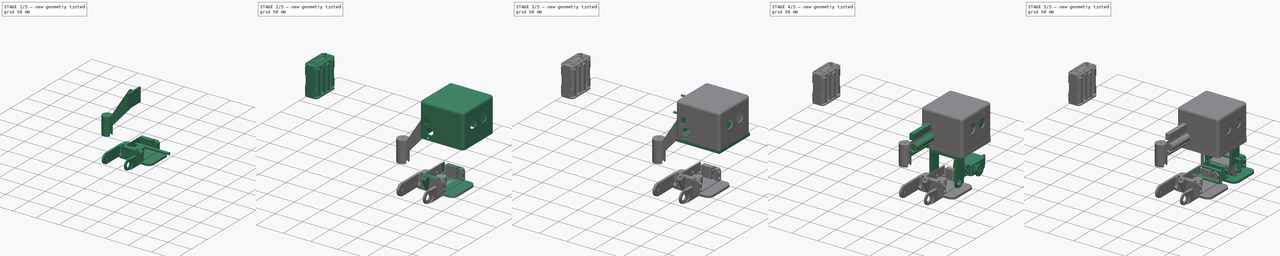
[diagram: build sequence overview — one tinted view per stage of 5, left to right]
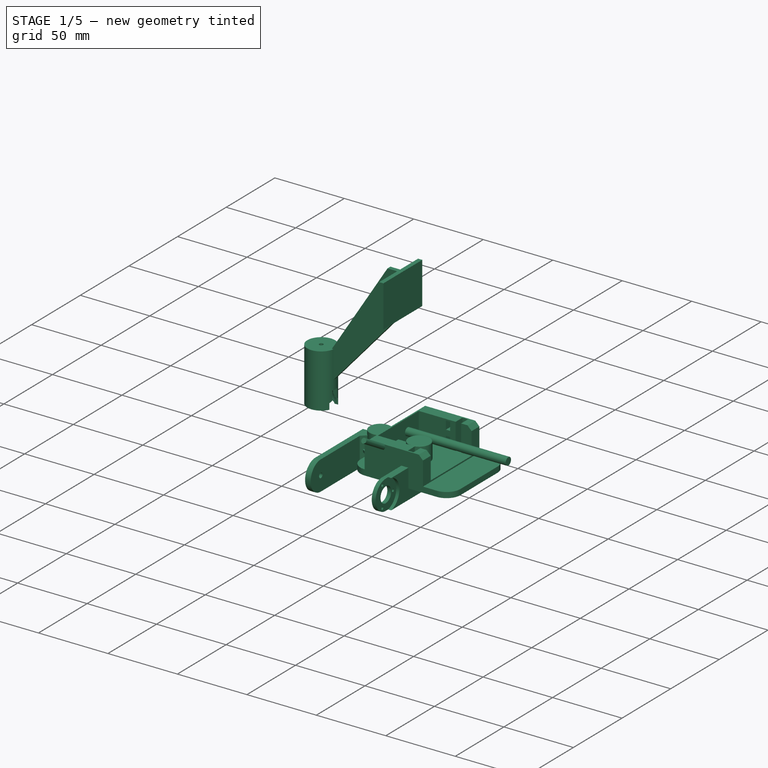
[diagram: stage 1 of 5 — iso view after this stage's code; geometry added in this stage tinted green]
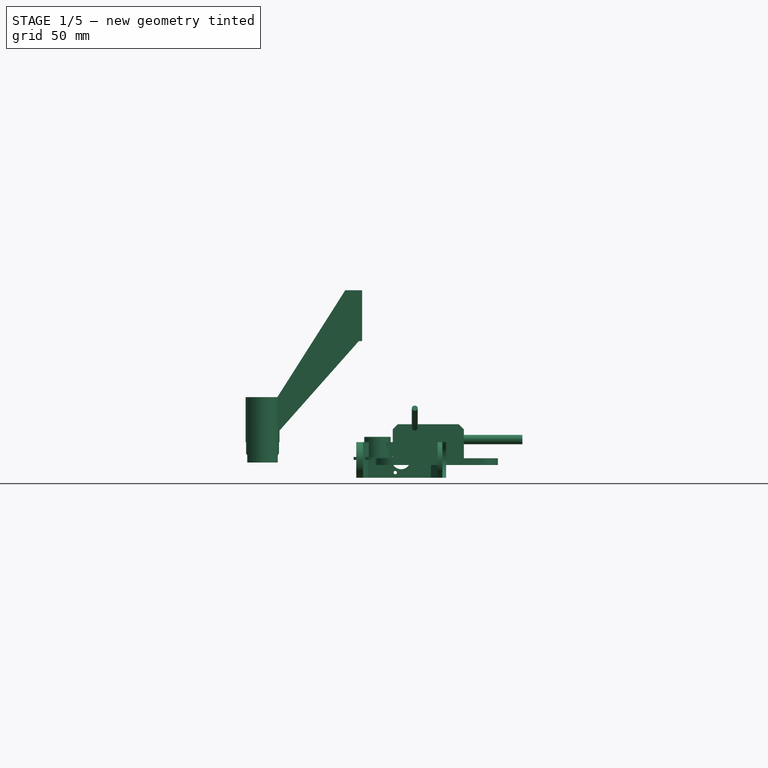
[diagram: stage 1 of 5 — front view after this stage's code; geometry added in this stage tinted green]
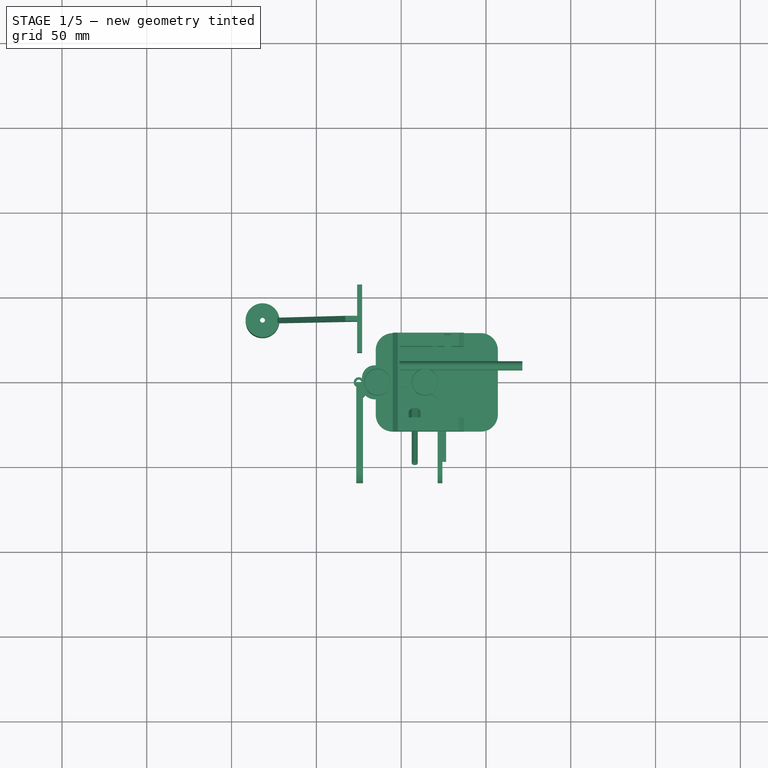
[diagram: stage 1 of 5 — top view after this stage's code; geometry added in this stage tinted green]
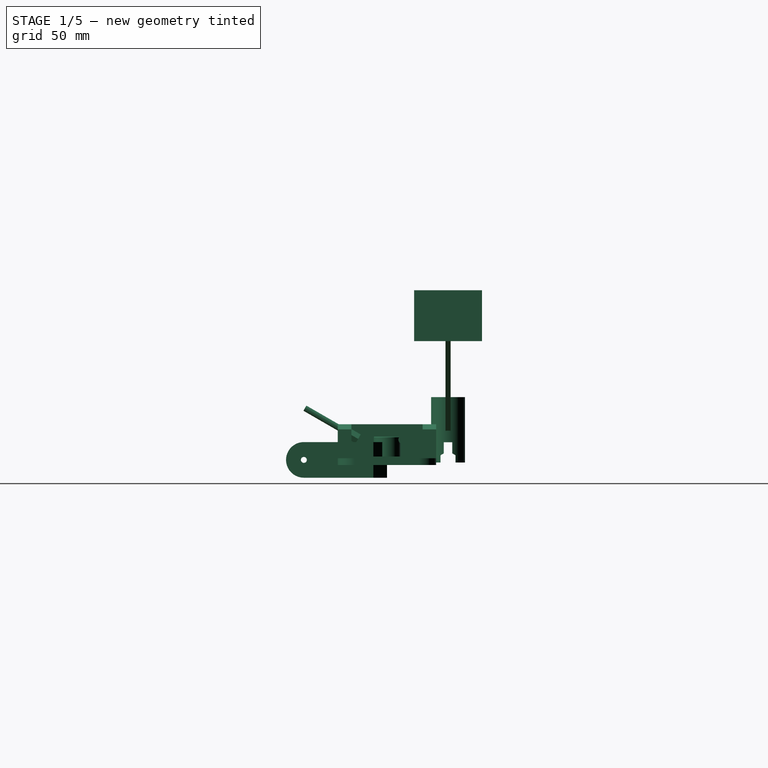
[diagram: stage 1 of 5 — right view after this stage's code; geometry added in this stage tinted green]
FCSTD DOCUMENT  (FreeCAD 0.15R4671 (Git))
Label: zowi
License: CC-BY 3.0
LicenseURL: http://creativecommons.org/licenses/by/3.0/
objects: Part::Feature×181, Part::Cut×47, Part::Cylinder×42, Part::Box×33, Part::MultiFuse×31, App::DocumentObjectGroup×25, App::Annotation×20, Part::Fillet×11, Part::Part2DObjectPython×11, Part::Mirroring×9, Sketcher::SketchObject×9, Part::Sphere×6, Part::Chamfer×5, PartDesign::Pocket×5, PartDesign::Pad×4, Part::FeaturePython×4, PartDesign::Fillet×2, Part::Compound×2, Part::Prism×1, PartDesign::Chamfer×1
note: 413 computed .brp shape members not serialized (recipe doc carries the construction recipe); baked Part::Feature solids carry a one-line shape summary decoded from their .brp

FEATURE [Part::Feature] Part__Feature013  label="Servo-D1"
  Placement = pos=(26.5,9.5,100.6) rot=(0,1,0;3.14159rad)
  shape: bbox 55.5 x 20 x 41.74 mm, 365 faces (baked)
FEATURE [Part::Feature] Part__Feature014  label="Servo-D2"
  Placement = pos=(0,0,13) rot=(0.57735,0.57735,0.57735;2.0944rad)
  shape: bbox 41.74 x 55.5 x 20 mm, 365 faces (baked)
FEATURE [Part::Feature] Part__Feature008  label="J1"
  Placement = pos=(-10.8,44.37,77.54) rot=(0.707107,0.707107,0;3.14159rad)
  shape: bbox 11.7 x 15.49 x 2.5 mm, 224 faces (baked)
FEATURE [Part::Feature] Part__Feature009  label="J2"
  Placement = pos=(-10.8,62.15,77.54) rot=(0.707107,0.707107,0;3.14159rad)
  shape: bbox 11.7 x 15.49 x 2.5 mm, 224 faces (baked)
FEATURE [Part::Feature] Part__Feature007  label="J4"
  Placement = pos=(-10.8,59.6199,125.78) rot=(0,0,-1;1.5708rad)
  shape: bbox 11.65 x 20.57 x 2.5 mm, 290 faces (baked)
FEATURE [Part::Feature] Part__Feature010  label="J16"
  Placement = pos=(-9.55,7.19908,100.417) rot=(0.57735,0.57735,-0.57735;2.0944rad)
  shape: bbox 2.94 x 5.43 x 7.98 mm, 414 faces, 0 solids (baked)
FEATURE [Part::Feature] Part__Feature005  label="PCB"
  Placement = pos=(-12.3914,5,75) rot=(0.57735,0.57735,0.57735;2.0944rad)
  shape: bbox 1.591 x 68.6 x 53.36 mm, 426 faces (baked)
FEATURE [Part::Feature] Part__Feature004  label="J010"
  Placement = pos=(-10.8,14.8841,83.3059) rot=(0.707107,0.707107,0;3.14159rad)
  shape: bbox 10.92 x 14.61 x 8.89 mm, 41 faces (baked)
FEATURE [Part::Feature] Part__Feature011  label="U1"
  Placement = pos=(-9.2,12.159,115.511) rot=(0.57735,-0.57735,-0.57735;2.0944rad)
  shape: bbox 2.435 x 26.9 x 13 mm, 503 faces (baked)
FEATURE [Part::Feature] Part__Feature006  label="J8"
  Placement = pos=(-10.8,37.7759,125.78) rot=(0,0,-1;1.5708rad)
  shape: bbox 11.65 x 20.57 x 2.5 mm, 290 faces (baked)
FEATURE [App::DocumentObjectGroup] Group001  label="placa"
  Group = -> [Part__Feature008,Part__Feature009,Part__Feature007,Part__Feature010,Part__Feature005,Part__Feature004,Part__Feature011,Part__Feature006]
FEATURE [Part::Box] Box  label="Cube"
  Height = 24
  Length = 72
  Placement = pos=(-15,-29,-3) rot=(0,0,1;0rad)
  Width = 58
FEATURE [Part::Box] Box001  label="Cube001"
  Height = 25
  Length = 47
  Placement = pos=(-1,-21,2) rot=(0,0,1;0rad)
  Width = 42
FEATURE [Part::Box] Box002  label="Cube002"
  Height = 38
  Length = 28
  Placement = pos=(37,-45,1) rot=(0,0,1;0rad)
  Width = 88
FEATURE [Part::Box] Box003  label="Cube003"
  Height = 38
  Length = 28
  Placement = pos=(-33,-45,1) rot=(0,0,1;0rad)
  Width = 88
FEATURE [Part::Cut] Cut
  Base = -> Box
  Tool = -> Box001
FEATURE [Part::Cut] Cut001
  Base = -> Cut
  Tool = -> Box002
FEATURE [Part::Cut] Cut002
  Base = -> Cut001
  Tool = -> Box003
FEATURE [Part::Cylinder] Cylinder003  label="Joint-D005"
  Angle = 360
  Height = 74.5
  Placement = pos=(-22,9.5,12) rot=(0,1,0;1.5708rad)
  Radius = 1.75
FEATURE [Part::Fillet] Fillet
  Base = -> Cut002
  Edges = 4 edges r=10: [Edge1,Edge3,Edge5,Edge14]
FEATURE [Part::Box] Box006  label="Cube006"
  Height = 21
  Length = 4
  Placement = pos=(25.5,-28,2) rot=(0,0,1;0rad)
  Width = 56
FEATURE [Part::Box] Box007  label="Cube007"
  Height = 6
  Length = 3
  Placement = pos=(18.5,-28,4) rot=(0,0,1;0rad)
  Width = 56
FEATURE [Part::Box] Box008  label="Cube008"
  Height = 6
  Length = 3
  Placement = pos=(18.5,-28,14) rot=(0,0,1;0rad)
  Width = 56
FEATURE [Part::Cylinder] Cylinder011  label="Joint-D013"
  Angle = 360
  Height = 74.5
  Placement = pos=(-3,9.5,12) rot=(0,1,0;1.5708rad)
  Radius = 2.75
FEATURE [Part::Chamfer] Chamfer
  Base = -> Fillet
  Edges = 3 edges r=3: [Edge18,Edge33,Edge37]
FEATURE [Part::Cut] Cut008
  Base = -> Chamfer
  Tool = -> Cylinder003
FEATURE [Part::Cut] Cut010
  Base = -> Cut008
  Tool = -> Box006
FEATURE [Part::Cut] Cut011
  Base = -> Cut010
  Tool = -> Box008
FEATURE [Part::Cut] Cut012
  Base = -> Cut011
  Tool = -> Box007
FEATURE [Part::Cylinder] Cylinder052  label="Cylinder071"
  Angle = 360
  Height = 27
  Placement = pos=(8,-25,17) rot=(1,0,0;1.0472rad)
  Radius = 1.75
FEATURE [Part::Prism] prism
  Circumradius = 3.5
  Height = 10
  Placement = pos=(8,-17,12.375) rot=(1,0,0;1.0472rad)
  Polygon = 6
FEATURE [Part::MultiFuse] Fusion036
  Shapes = -> [Cylinder052,prism]
FEATURE [Part::Box] Box044  label="Cube043"
  Height = 30
  Length = 3
  Placement = pos=(-26,16,70) rot=(0,0,1;0rad)
  Width = 40
FEATURE [Part::Feature] Cut062
  Placement = pos=(-82.5,-7.75,37) rot=(0,1,0;3.14159rad)
  shape: bbox 20 x 20 x 38.5 mm, 2097 faces (baked)
FEATURE [Part::Feature] hull003
  shape: bbox 48 x 3 x 83 mm, 8 faces (baked)
FEATURE [Part::MultiFuse] Fusion037  label="cola"
  Shapes = -> [Box044,hull003,Cut062]
FEATURE [App::DocumentObjectGroup] Group003  label="original-src"
  Group = -> [Part__Mirroring006,Part__Mirroring007,Group004,Cut069,Chamfer004,Group005]
FEATURE [Part::Feature] Part__Mirroring007001  label="pata-orig"
  Placement = pos=(-17,-62,-9.49999) rot=(-1,0,0;1.5708rad)
  shape: bbox 53 x 59.5 x 21 mm, 32 faces (baked)
FEATURE [Sketcher::SketchObject] Sketch001  label="leg-sketch-1"
  Placement = pos=(0,0,0) rot=(0.57735,0.57735,0.57735;2.0944rad)
  sketch-geometry (5):
    g0: LineSegment StartX=-49 StartY=10.5 StartZ=0 EndX=0 EndY=10.5 EndZ=0
    g1: LineSegment StartX=0 StartY=10.5 StartZ=0 EndX=0 EndY=-10.5 EndZ=0
    g2: LineSegment StartX=0 StartY=-10.5 StartZ=0 EndX=-49 EndY=-10.5 EndZ=0
    g3: LineSegment [constr] StartX=-49 StartY=-10.5 StartZ=0 EndX=-49 EndY=10.5 EndZ=0
    g4: ArcOfCircle CenterX=-49 CenterY=0 CenterZ=0 NormalX=0 NormalY=0 NormalZ=1 Radius=10.5 StartAngle=1.5708 EndAngle=4.71239
  constraints (15):
    c: Coincident(g0,g1)
    c: Coincident(g1,g2)
    c: Coincident(g2,g3)
    c: Coincident(g3,g0)
    c: Horizontal(g0)
    c: Horizontal(g2)
    c: Vertical(g1)
    c: Vertical(g3)
    c: PointOnObject(g4,g3)
    c: Coincident(g4,g0)
    c: Coincident(g4,g2)
    c: PointOnObject(g4,g-1)
    c: PointOnObject(g0,g-2)
    c: DistanceX(g0) = 49
    c: DistanceY(g1) = -21
FEATURE [PartDesign::Pad] Pad001  label="leg-block-1"
  Length = 53
  Length2 = 100
  Midplane = true
  Placement = pos=(0,0,0) rot=(0.57735,0.57735,0.57735;2.0944rad)
  Sketch = -> Sketch001
  Type = 0
FEATURE [Sketcher::SketchObject] Sketch002  label="leg-top-sketch"
  ExternalGeometry = -> [Pad001]
  Placement = pos=(0,0,10.5) rot=(0,0,-1;1.5708rad)
  Support = -> Pad001 [Face1]
  sketch-geometry (9):
    g0: LineSegment StartX=64 StartY=21.5 StartZ=0 EndX=10 EndY=21.5 EndZ=0
    g1: LineSegment StartX=6 StartY=17.5 StartZ=0 EndX=6 EndY=-19.5 EndZ=0
    g2: LineSegment StartX=9 StartY=-22.5 StartZ=0 EndX=64 EndY=-22.5 EndZ=0
    g3: LineSegment StartX=64 StartY=-22.5 StartZ=0 EndX=64 EndY=21.5 EndZ=0
    g4: LineSegment StartX=6 StartY=17.5 StartZ=0 EndX=10 EndY=21.5 EndZ=0
    g5: LineSegment [constr] StartX=6 StartY=17.5 StartZ=0 EndX=6 EndY=21.5 EndZ=0
    g6: LineSegment StartX=6 StartY=-19.5 StartZ=0 EndX=9 EndY=-22.5 EndZ=0
    g7: LineSegment [constr] StartX=9 StartY=-22.5 StartZ=0 EndX=6 EndY=-22.5 EndZ=0
    g8: LineSegment [constr] StartX=6 StartY=-22.5 StartZ=0 EndX=6 EndY=-19.5 EndZ=0
  constraints (26):
    c: Coincident(g2,g3)
    c: Coincident(g3,g0)
    c: Horizontal(g0)
    c: Horizontal(g2)
    c: Vertical(g1)
    c: Vertical(g3)
    c: DistanceY(g-3,g5) = -5
    c: DistanceY(g7,g-4) = -4
    c: Angle(g-2,g4) = 2.35619
    c: Coincident(g1,g4)
    c: Coincident(g5,g1)
    c: Vertical(g5)
    c: DistanceY(g1,g7) = -40
    c: DistanceX(g5,g-3) = -6
    c: Coincident(g0,g4)
    c: PointOnObject(g5,g0)
    c: DistanceX(g-3,g0) = 15
    c: Coincident(g2,g6)
    c: Coincident(g7,g2)
    c: Horizontal(g7)
    c: DistanceX(g7) = -3
    c: Coincident(g1,g6)
    c: Coincident(g8,g7)
    c: Coincident(g8,g1)
    c: Equal(g8,g7)
    c: Vertical(g8)
FEATURE [PartDesign::Pocket] Pocket  label="leg-block-2"
  Length = 5
  Placement = pos=(0,0,0) rot=(0.57735,0.57735,0.57735;2.0944rad)
  Sketch = -> Sketch002
  Type = 1
FEATURE [Sketcher::SketchObject] Sketch003  label="ankle-rounded-horn-sketch"
  ExternalGeometry = -> [Pocket]
  Placement = pos=(26.5,0,0) rot=(0.57735,0.57735,0.57735;2.0944rad)
  Support = -> Pocket [Face4]
  sketch-geometry (1):
    g0: Circle CenterX=-49 CenterY=0 CenterZ=0 NormalX=0 NormalY=0 NormalZ=1 Radius=10.75
  constraints (2):
    c: Coincident(g0,g-3)
    c: Radius(g0) = 10.75
FEATURE [PartDesign::Pocket] Pocket001  label="ankle-rounded-horn-cutout"
  Length = 2.2
  Placement = pos=(0,0,0) rot=(0.57735,0.57735,0.57735;2.0944rad)
  Sketch = -> Sketch003
  Type = 0
FEATURE [Sketcher::SketchObject] Sketch004  label="ankle-rear-shaft-drill-sketch"
  ExternalGeometry = -> [Pocket001]
  Placement = pos=(-26.5,0,0) rot=(0.57735,0.57735,-0.57735;4.18879rad)
  Support = -> Pocket001 [Face2]
  sketch-geometry (1):
    g0: Circle CenterX=-49 CenterY=0 CenterZ=0 NormalX=0 NormalY=0 NormalZ=1 Radius=1.75
  constraints (2):
    c: Coincident(g0,g-3)
    c: Radius(g0) = 1.75
FEATURE [PartDesign::Pocket] Pocket002  label="ankle-rear-shaft-drill"
  Length = 0
  Placement = pos=(0,0,0) rot=(0.57735,0.57735,0.57735;2.0944rad)
  Sketch = -> Sketch004
  Type = 2
FEATURE [Sketcher::SketchObject] Sketch005  label="hip-rounded-horn-cutout-sketch"
  Placement = pos=(0,-6,0) rot=(-0.57735,-0.57735,0.57735;4.18879rad)
  Support = -> Pocket002 [Face10]
  sketch-geometry (1):
    g0: Circle CenterX=0 CenterY=0 CenterZ=0 NormalX=0 NormalY=0 NormalZ=1 Radius=11
  constraints (2):
    c: Coincident(g0,g-1)
    c: Radius(g0) = 11
FEATURE [PartDesign::Pocket] Pocket003  label="hip-rounded-horn-cutout"
  Length = 3.3
  Placement = pos=(0,0,0) rot=(0.57735,0.57735,0.57735;2.0944rad)
  Sketch = -> Sketch005
  Type = 0
FEATURE [Sketcher::SketchObject] Sketch006  label="horn-side-chamfer-sketch"
  ExternalGeometry = -> [Pocket003]
  Placement = pos=(0,0,10.5) rot=(0,0,-1;1.5708rad)
  Support = -> Pocket003 [Face1]
  sketch-geometry (3):
    g0: LineSegment StartX=0 StartY=18.5 StartZ=0 EndX=8 EndY=26.5 EndZ=0
    g1: LineSegment StartX=0 StartY=18.5 StartZ=0 EndX=0 EndY=26.5 EndZ=0
    g2: LineSegment StartX=0 StartY=26.5 StartZ=0 EndX=8 EndY=26.5 EndZ=0
  constraints (8):
    c: PointOnObject(g0,g-2)
    c: PointOnObject(g0,g-3)
    c: Angle(g-2,g0) = 2.35619
    c: DistanceY(g-3,g0) = -8
    c: Coincident(g0,g1)
    c: Coincident(g1,g-3)
    c: Coincident(g1,g2)
    c: Coincident(g2,g0)
FEATURE [PartDesign::Pocket] Pocket004  label="horn-side-chamfer"
  Length = 5
  Placement = pos=(0,0,0) rot=(0.57735,0.57735,0.57735;2.0944rad)
  Sketch = -> Sketch006
  Type = 1
FEATURE [Part::Cylinder] Cylinder054  label="servo-shaft-drill"
  Angle = 360
  Height = 20
  Placement = pos=(0,10,0) rot=(1,0,0;1.5708rad)
  Radius = 5.5
FEATURE [Part::Cylinder] Cylinder055  label="servo-horn-small-drill-master"
  Angle = 360
  Height = 20
  Placement = pos=(-3.5,10,7.5) rot=(1,0,0;1.5708rad)
  Radius = 1
FEATURE [Part::FeaturePython] Clone001  label="Clone of servo-horn-small-drill-master"  # Draft clone (typed FeaturePython)
  Objects = -> [Cylinder055]
  Placement = pos=(7.35,10,-2.33815e-06) rot=(1,0,0;1.5708rad)
  Scale = (1,1,1)
FEATURE [Part::FeaturePython] Clone002  label="Clone of servo-horn-small-drill-master001"  # Draft clone (typed FeaturePython)
  Objects = -> [Cylinder055]
  Placement = pos=(-3.5,10,-7.5) rot=(1,0,0;1.5708rad)
  Scale = (1,1,1)
FEATURE [Part::MultiFuse] Fusion041  label="servo-Drills-block1-master"
  Shapes = -> [Clone001,Clone002,Cylinder055,Cylinder054]
FEATURE [Part::FeaturePython] Clone003  label="Clone of servo-Drills-block1-master"  # Draft clone (typed FeaturePython)
  Objects = -> [Fusion041]
  Placement = pos=(22,-49,6.96015e-06) rot=(0,0,1;1.5708rad)
  Scale = (1,1,1)
FEATURE [Part::MultiFuse] Fusion042  label="Servo-horn-drills"
  Shapes = -> [Fusion041,Clone003]
FEATURE [Part::Cut] Cut070  label="Leg"
  Base = -> Pocket004
  Tool = -> Fusion042
FEATURE [App::DocumentObjectGroup] Group007  label="Leg-src"
  Group = -> [Pad001,Pocket,Pocket001,Pocket002,Pocket003,Cut070]
FEATURE [Sketcher::SketchObject] Sketch007
  sketch-geometry (15):
    g0: LineSegment StartX=-15.86 StartY=-10 StartZ=0 EndX=15.86 EndY=-10 EndZ=0
    g1: ArcOfCircle CenterX=-25 CenterY=0 CenterZ=0 NormalX=0 NormalY=0 NormalZ=1 Radius=3.00012 StartAngle=0.897592 EndAngle=5.38559
    g2: ArcOfCircle CenterX=25 CenterY=0 CenterZ=0 NormalX=0 NormalY=0 NormalZ=1 Radius=3.00012 StartAngle=4.03918 EndAngle=8.52719
    g3: Circle CenterX=-25 CenterY=0 CenterZ=0 NormalX=0 NormalY=0 NormalZ=1 Radius=1.6
    g4: Circle CenterX=25 CenterY=0 CenterZ=0 NormalX=0 NormalY=0 NormalZ=1 Radius=1.6
    g5: LineSegment [constr] StartX=-25 StartY=31.675 StartZ=0 EndX=25 EndY=31.675 EndZ=0
    g6: LineSegment [constr] StartX=-25 StartY=31.675 StartZ=0 EndX=-25 EndY=0 EndZ=0
    g7: LineSegment [constr] StartX=3.61551 StartY=10 StartZ=0 EndX=3.61551 EndY=-10 EndZ=0
    g8: LineSegment StartX=-15.86 StartY=10 StartZ=0 EndX=15.86 EndY=10 EndZ=0
    g9: ArcOfCircle CenterX=-15.6958 CenterY=2.56491 CenterZ=0 NormalX=0 NormalY=0 NormalZ=1 Radius=7.4369 StartAngle=1.59288 EndAngle=3.17109
    g10: ArcOfCircle CenterX=-15.6958 CenterY=-2.56491 CenterZ=0 NormalX=0 NormalY=0 NormalZ=1 Radius=7.4369 StartAngle=3.11209 EndAngle=4.69031
    g11: ArcOfCircle CenterX=15.6958 CenterY=2.56491 CenterZ=0 NormalX=0 NormalY=0 NormalZ=1 Radius=7.4369 StartAngle=6.25369 EndAngle=7.8319
    g12: ArcOfCircle CenterX=15.6958 CenterY=-2.56491 CenterZ=0 NormalX=0 NormalY=0 NormalZ=1 Radius=7.4369 StartAngle=4.73447 EndAngle=6.31268
    g13: LineSegment [constr] StartX=-28.0001 StartY=-22.7357 StartZ=0 EndX=27.9999 EndY=-22.7357 EndZ=0
    g14: LineSegment [constr] StartX=-28.0001 StartY=1.36738e-07 StartZ=0 EndX=-28.0001 EndY=-22.7357 EndZ=0
  constraints (43):
    c: Coincident(g3,g1)
    c: Coincident(g4,g2)
    c: Horizontal(g5)
    c: DistanceX(g5) = 50
    c: Coincident(g6,g5)
    c: Vertical(g6)
    c: Coincident(g1,g6)
    c: DistanceY(g7) = -20
    c: Symmetric(g7,g7,g-1)
    c: Symmetric(g8,g0,g-1)
    c: Equal(g8,g0)
    c: Equal(g2,g1)
    c: Radius(g3) = 1.6
    c: Coincident(g9,g1)
    c: Coincident(g8,g9)
    c: Equal(g4,g3)
    c: Symmetric(g2,g1,g-2)
    c: Symmetric(g2,g1,g-2)
    c: Coincident(g11,g8)
    c: Coincident(g0,g12)
    c: Coincident(g10,g0)
    c: Coincident(g10,g1)
    c: Coincident(g12,g2)
    c: Horizontal(g8)
    c: Horizontal(g0)
    c: PointOnObject(g7,g8)
    c: DistanceX(g8) = 31.72
    c: PointOnObject(g1,g-1)
    c: Symmetric(g8,g8,g-2)
    c: Horizontal(g13)
    c: DistanceX(g13) = 56
    c: PointOnObject(g14,g1)
    c: Coincident(g14,g13)
    c: Vertical(g14)
    c: Tangent(g14,g1)
    c: Equal(g9,g11)
    c: Equal(g12,g11)
    c: Equal(g10,g9)
    c: Coincident(g11,g2)
    c: Symmetric(g5,g5,g-2)
    c: Symmetric(g2,g2,g-1)
    c: Symmetric(g1,g1,g-1)
    c: Symmetric(g2,g1,g-2)
FEATURE [PartDesign::Pad] Pad002
  Length = 1.68
  Length2 = 100
  Sketch = -> Sketch007
  Type = 0
FEATURE [Sketcher::SketchObject] Sketch008
  ExternalGeometry = -> [Pad002]
  Placement = pos=(0,0,1.68) rot=(0,0,1;0rad)
  Support = -> Pad002 [Face12]
  sketch-geometry (3):
    g0: Circle CenterX=-14 CenterY=0 CenterZ=0 NormalX=0 NormalY=0 NormalZ=1 Radius=7.8
    g1: Circle CenterX=14 CenterY=0 CenterZ=0 NormalX=0 NormalY=0 NormalZ=1 Radius=7.8
    g2: LineSegment [constr] StartX=-25 StartY=0 StartZ=0 EndX=-14 EndY=0 EndZ=0
  constraints (10):
    c: PointOnObject(g0,g-1)
    c: PointOnObject(g1,g-1)
    c: Symmetric(g0,g1,g-2)
    c: Equal(g0,g1)
    c: Radius(g1) = 7.8
    c: Coincident(g2,g-3)
    c: Coincident(g2,g0)
    c: Horizontal(g2)
    c: Tangent(g2,g-1)
    c: DistanceX(g2) = 11
FEATURE [PartDesign::Pad] Pad003
  Length = 12
  Length2 = 100
  Sketch = -> Sketch008
  Type = 0
FEATURE [PartDesign::Chamfer] Chamfer005
  Base = -> Pad003 [Edge34,Edge36]
  Size = 0.3
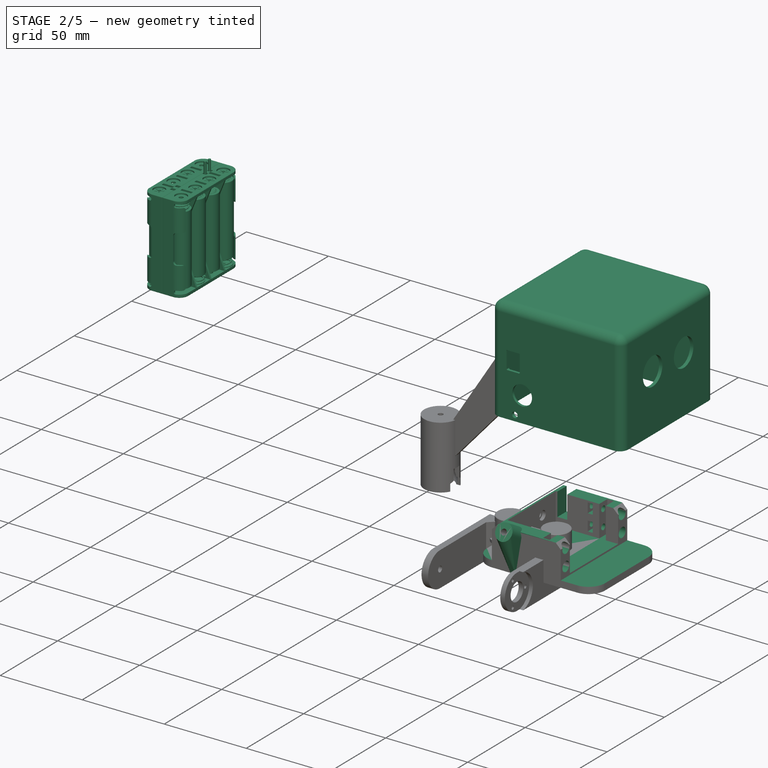
[diagram: stage 2 of 5 — iso view after this stage's code; geometry added in this stage tinted green]
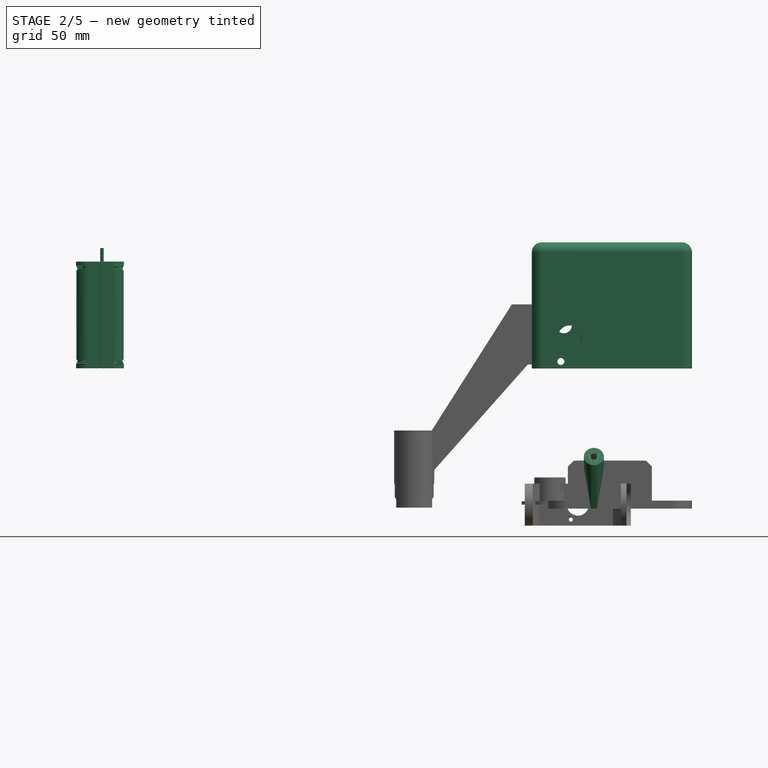
[diagram: stage 2 of 5 — front view after this stage's code; geometry added in this stage tinted green]
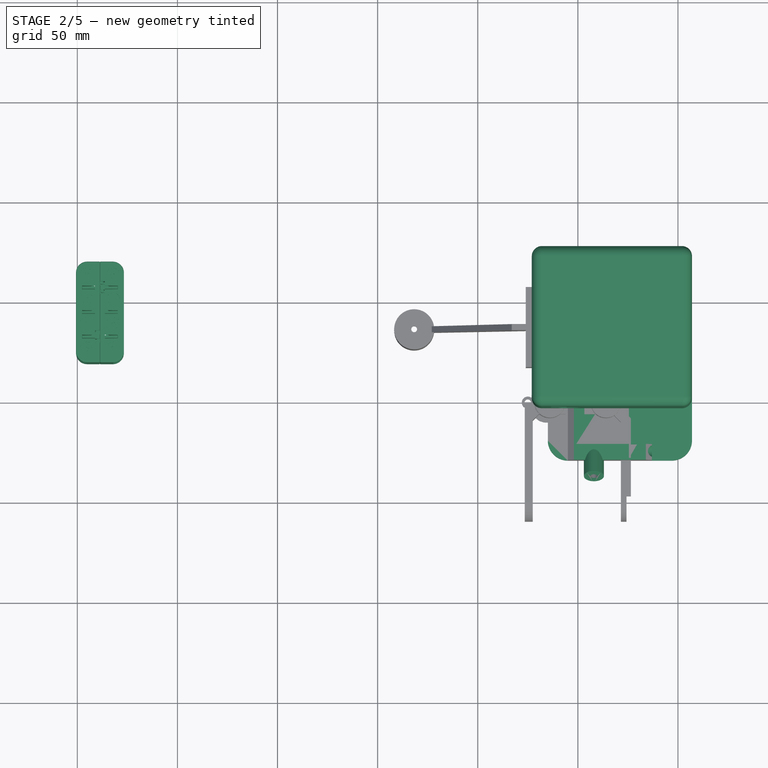
[diagram: stage 2 of 5 — top view after this stage's code; geometry added in this stage tinted green]
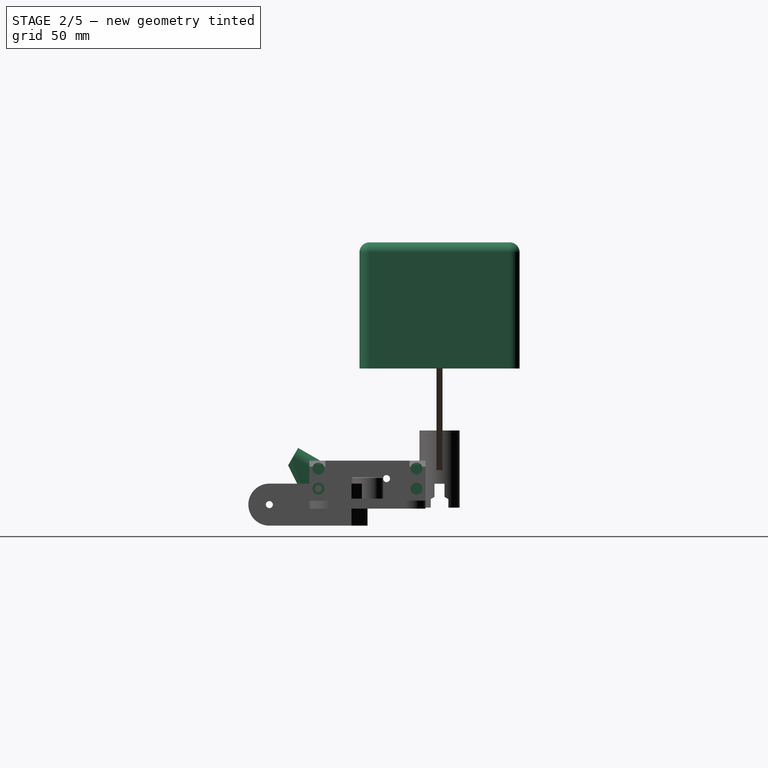
[diagram: stage 2 of 5 — right view after this stage's code; geometry added in this stage tinted green]
FEATURE [Part::Cylinder] Cylinder008  label="Joint-D010"
  Angle = 360
  Height = 21.5
  Placement = pos=(16,-24.5,7) rot=(0,1,0;1.5708rad)
  Radius = 1.75
FEATURE [Part::Cylinder] Cylinder009  label="Joint-D011"
  Angle = 360
  Height = 21.5
  Placement = pos=(32,-24.5,7) rot=(0,1,0;1.5708rad)
  Radius = 3
FEATURE [Part::MultiFuse] Fusion001
  Shapes = -> [Cylinder009,Cylinder008]
FEATURE [Part::MultiFuse] Fusion002
  Placement = pos=(0,0,10) rot=(0,0,1;0rad)
  Shapes = -> [Cylinder009,Cylinder008]
FEATURE [Part::MultiFuse] Fusion003
  Placement = pos=(0,49,0) rot=(0,0,1;0rad)
  Shapes = -> [Cylinder009,Cylinder008]
FEATURE [Part::MultiFuse] Fusion004
  Placement = pos=(0,49,10) rot=(0,0,1;0rad)
  Shapes = -> [Cylinder009,Cylinder008]
FEATURE [Part::Box] Box019  label="Cube019"
  Height = 66
  Length = 76
  Placement = pos=(-21,-2,87) rot=(0,0,1;0rad)
  Width = 76
FEATURE [Part::Fillet] Fillet006
  Base = -> Box019
  Edges = 8 edges r=3.5: [Edge1,Edge2,Edge3,Edge5,Edge6,Edge7,Edge10,Edge12]
  Placement = pos=(0,0,-24) rot=(0,0,1;0rad)
FEATURE [Part::Cut] Cut026
  Tool = -> Fillet006
FEATURE [Part::Cylinder] Cylinder014  label="Cylinder002"
  Angle = 360
  Height = 31
  Placement = pos=(-8.5,11,71.5) rot=(1,0,0;1.5708rad)
  Radius = 1.75
FEATURE [Part::Cut] Cut027
  Base = -> Cut026
  Tool = -> Cylinder014
FEATURE [Part::Cylinder] Cylinder015  label="Cylinder003"
  Angle = 360
  Height = 31
  Placement = pos=(-8.5,80,71.5) rot=(1,0,0;1.5708rad)
  Radius = 1.75
FEATURE [Part::Cut] Cut028
  Base = -> Cut027
  Tool = -> Cylinder015
FEATURE [Part::Cylinder] Cylinder016  label="Cylinder004"
  Angle = 360
  Height = 31
  Placement = pos=(-4,11,83.5) rot=(1,0,0;1.5708rad)
  Radius = 6
FEATURE [Part::Cut] Cut029
  Base = -> Cut028
  Tool = -> Cylinder016
FEATURE [Part::Box] Box020  label="Cube020"
  Height = 11
  Length = 8
  Placement = pos=(-13.5,-13,95) rot=(0,0,1;0rad)
  Width = 24
FEATURE [Part::Cut] Cut013
  Base = -> Cut012
  Tool = -> Fusion004
FEATURE [Part::Cut] Cut014
  Base = -> Cut013
  Tool = -> Fusion003
FEATURE [Part::Cut] Cut015
  Base = -> Cut014
  Tool = -> Fusion002
FEATURE [Part::Cut] Cut016
  Base = -> Cut015
  Tool = -> Fusion001
FEATURE [Part::Cylinder] Cylinder024  label="Joint-D017"
  Angle = 360
  Height = 52.5
  Placement = pos=(8,49.5,103) rot=(0,1,0;1.5708rad)
  Radius = 8.5
FEATURE [Part::Cylinder] Cylinder025  label="Joint-D018"
  Angle = 360
  Height = 52.5
  Placement = pos=(8,22.5,103) rot=(0,1,0;1.5708rad)
  Radius = 8.5
FEATURE [Part::Cylinder] Cylinder026  label="Cylinder029"
  Angle = 360
  Height = 31
  Placement = pos=(-7,80,89.6) rot=(1,0,0;1.5708rad)
  Radius = 4
FEATURE [Part::MultiFuse] Fusion030
  Shapes = -> [Cylinder025,Cylinder024]
FEATURE [Part::Cut] Cut055
  Base = -> Cut029
  Tool = -> Fusion030
FEATURE [Part::Cut] Cut056
  Base = -> Cut055
  Tool = -> Cylinder026
FEATURE [Part::Cut] Cut057
  Base = -> Cut056
  Tool = -> Box020
FEATURE [Part::Fillet] Fillet018006  label="head"
  Base = -> Cut057
  Edges = 4 edges r=0.5: [Edge82,Edge83,Edge84,Edge85]
FEATURE [Part::Feature] hull002
  shape: bbox 10 x 17.12 x 30.33 mm, 240 faces (baked)
FEATURE [Part::Box] Box042  label="Cube041"
  Height = 23
  Length = 6
  Placement = pos=(0,19,7) rot=(0,0,1;0rad)
  Width = 36
FEATURE [Part::Cut] Cut060  label="pie001"
  Base = -> Cut016
  Tool = -> Cylinder011
FEATURE [Part::Cut] Cut059  label="piepatin"
  Base = -> Cut060
  Placement = pos=(0,0,1) rot=(0,0,1;0rad)
  Tool = -> Box042
FEATURE [Part::MultiFuse] Fusion035
  Shapes = -> [hull002,Cut059]
FEATURE [Part::Cut] Cut061  label="patin"
  Base = -> Fusion035
  Tool = -> Fusion036
FEATURE [Sketcher::SketchObject] Sketch
  Placement = pos=(-22,0,0) rot=(0.57735,-0.57735,-0.57735;2.0944rad)
  sketch-geometry (4):
    g0: ArcOfCircle CenterX=-49 CenterY=111.5 CenterZ=0 NormalX=0 NormalY=0 NormalZ=1 Radius=3.5 StartAngle=9.1497e-08 EndAngle=3.14159
    g1: LineSegment StartX=-52.5 StartY=111.5 StartZ=0 EndX=-52.5 EndY=91.5 EndZ=0
    g2: LineSegment StartX=-45.5 StartY=111.5 StartZ=0 EndX=-45.5 EndY=91.5 EndZ=0
    g3: ArcOfCircle CenterX=-49 CenterY=91.5 CenterZ=0 NormalX=0 NormalY=0 NormalZ=1 Radius=3.5 StartAngle=3.14159 EndAngle=6.28319
  constraints (13):
    c: DistanceX(g-1,g0) = -49
    c: DistanceY(g-1,g0) = 111.5
    c: Radius(g0) = 3.5
    c: Vertical(g1)
    c: Vertical(g2)
    c: Coincident(g1,g0)
    c: Coincident(g2,g0)
    c: Tangent(g2,g0)
    c: Tangent(g1,g0)
    c: Coincident(g3,g1)
    c: Coincident(g3,g2)
    c: Equal(g3,g0)
    c: Distance(g3,g0) = 20
FEATURE [PartDesign::Pad] Pad
  Length = 5
  Length2 = 100
  Placement = pos=(-22,0,0) rot=(0.57735,-0.57735,-0.57735;2.0944rad)
  Reversed = true
  Sketch = -> Sketch
  Type = 0
FEATURE [Part::FeaturePython] Clone  label="Clone of Pad"  # Draft clone (typed FeaturePython)
  Objects = -> [Pad]
  Placement = pos=(-22,-20,0) rot=(0.57735,-0.57735,-0.57735;2.0944rad)
  Scale = (1,1,1)
FEATURE [Part::MultiFuse] Fusion039
  Placement = pos=(4.5,0,0) rot=(0,0,1;0rad)
  Shapes = -> [Pad,Clone]
FEATURE [Part::Box] Box047  label="Cube046"
  Height = 49
  Length = 17
  Placement = pos=(-14,-2.5,75) rot=(0,0,1;0rad)
  Width = 77
FEATURE [Part::Fillet] Fillet018014
  Base = -> Box047
  Edges = 12 edges r=2: [Edge1,Edge2,Edge3,Edge4,Edge5,Edge6,Edge7,Edge8,Edge9,Edge10,Edge11,Edge12]
FEATURE [Part::Cut] Cut069  label="cabeza"
  Base = -> Fillet018006
  Tool = -> Fillet018014
FEATURE [App::DocumentObjectGroup] Group008  label="fake-ultrasound"
  Group = -> [Pad002,Pad003,Chamfer005]
FEATURE [App::DocumentObjectGroup] Group006  label="src"
  Group = -> [Group007,Part__Mirroring007001,Group008]
FEATURE [Part::Feature] Part__Mirroring007002  label="pie-I001"
  Placement = pos=(-202.95,69.39,2) rot=(0,0,-1;1.5708rad)
  shape: bbox 58 x 72 x 24 mm, 84 faces (baked)
FEATURE [Part::Feature] Cut071  label="pie-D001"
  Placement = pos=(-274.85,69.19,3) rot=(0,0,-1;1.5708rad)
  shape: bbox 58 x 72 x 24 mm, 84 faces (baked)
FEATURE [Part::Feature] Part__Mirroring007003  label="pata-I001"
  Placement = pos=(-202.95,69.9,1.95) rot=(0,0,-1;1.5708rad)
  shape: bbox 21 x 53 x 59.5 mm, 32 faces (baked)
FEATURE [Part::Feature] Chamfer006  label="chasis001"
  Placement = pos=(-275,70,2.44) rot=(0,0,-1;1.5708rad)
  shape: bbox 80 x 80 x 55 mm, 159 faces (baked)
FEATURE [Part::Feature] Cut072  label="head001"
  Placement = pos=(-275,70,2.44) rot=(0,0,-1;1.5708rad)
  shape: bbox 80 x 80 x 63 mm, 68 faces (baked)
FEATURE [Part::Feature] Part__Mirroring007004  label="leg-body"
  Placement = pos=(-255.95,69.7,1.95) rot=(0,0,-1;1.5708rad)
  shape: bbox 21 x 53 x 59.5 mm, 32 faces (baked)
FEATURE [Part::Feature] Chamfer007  label="ISO-10642-M3x10"
  Placement = pos=(-265.35,70.0132,15) rot=(0.57735,0.57735,-0.57735;2.0944rad)
  shape: bbox 6.046 x 10 x 6.046 mm, 25 faces (baked)
FEATURE [Part::Feature] Chamfer008  label="ISO-10642-M3x011"
  Placement = pos=(-212.45,70.2132,15) rot=(0.57735,0.57735,-0.57735;2.0944rad)
  shape: bbox 6.046 x 10 x 6.046 mm, 25 faces (baked)
FEATURE [Part::Feature] Chamfer009  label="ISO4032-Hex-Nut-M3"
  Placement = pos=(-250.35,48.29,20) rot=(0,0,1;0rad)
  shape: bbox 6.35 x 2.4 x 6.35 mm, 29 faces (baked)
FEATURE [Part::Feature] Chamfer010  label="ISO4032-Hex-Nut-M004"
  Placement = pos=(-250.35,47.69,10) rot=(0,0,1;0rad)
  shape: bbox 6.35 x 2.4 x 6.35 mm, 29 faces (baked)
FEATURE [Part::Feature] Chamfer011  label="ISO4032-Hex-Nut-M005"
  Placement = pos=(-299.35,47.69,20) rot=(0,0,1;0rad)
  shape: bbox 6.35 x 2.4 x 6.35 mm, 29 faces (baked)
FEATURE [Part::Feature] Chamfer012  label="ISO4032-Hex-Nut-M006"
  Placement = pos=(-299.35,47.69,10) rot=(0,0,1;0rad)
  shape: bbox 6.35 x 2.4 x 6.35 mm, 29 faces (baked)
FEATURE [Part::Feature] Chamfer013  label="ISO4762_Hex_screw-M3x16"
  Placement = pos=(-299.35,37.19,20) rot=(0.57735,0.57735,-0.57735;2.0944rad)
  shape: bbox 5.5 x 19 x 5.5 mm, 16 faces (baked)
FEATURE [Part::Feature] Compound  label="Servo-Futaba-3003-ready001"
  Placement = pos=(-274.9,69.49,14.95) rot=(1,0,0;1.5708rad)
  shape: bbox 57.75 x 41.74 x 20 mm, 378 faces, 4 solids (baked)
FEATURE [Part::Feature] Chamfer014  label="ISO4762_Hex_screw-M3x017"
  Placement = pos=(-299.35,37.29,10) rot=(0.57735,0.57735,-0.57735;2.0944rad)
  shape: bbox 5.5 x 19 x 5.5 mm, 16 faces (baked)
FEATURE [Part::Feature] Chamfer015  label="ISO4762_Hex_screw-M3x018"
  Placement = pos=(-250.35,37.29,10) rot=(0.57735,0.57735,-0.57735;2.0944rad)
  shape: bbox 5.5 x 19 x 5.5 mm, 16 faces (baked)
FEATURE [Part::Feature] Chamfer016  label="ISO4762_Hex_screw-M3x019"
  Placement = pos=(-250.35,37.29,20) rot=(0.57735,0.57735,-0.57735;2.0944rad)
  shape: bbox 5.5 x 19 x 5.5 mm, 16 faces (baked)
FEATURE [Part::Feature] Compound001  label="Servo-Futaba-3003-ready002"
  Placement = pos=(-203,69.69,14.95) rot=(0,0.707107,-0.707107;3.14159rad)
  shape: bbox 57.75 x 41.74 x 20 mm, 378 faces, 4 solids (baked)
FEATURE [Part::Feature] Chamfer017  label="ISO4032-Hex-Nut-M007"
  Placement = pos=(-227.45,48.49,20) rot=(0,0,1;0rad)
  shape: bbox 6.35 x 2.4 x 6.35 mm, 29 faces (baked)
FEATURE [Part::Feature] Chamfer018  label="ISO4032-Hex-Nut-M008"
  Placement = pos=(-227.45,48.69,10) rot=(0,0,1;0rad)
  shape: bbox 6.35 x 2.4 x 6.35 mm, 29 faces (baked)
FEATURE [Part::Feature] Chamfer019  label="ISO4032-Hex-Nut-M009"
  Placement = pos=(-178.45,48.49,10) rot=(0,0,1;0rad)
  shape: bbox 6.35 x 2.4 x 6.35 mm, 29 faces (baked)
FEATURE [Part::Feature] Chamfer020  label="ISO4032-Hex-Nut-M010"
  Placement = pos=(-178.45,48.49,20) rot=(0,0,1;0rad)
  shape: bbox 6.35 x 2.4 x 6.35 mm, 29 faces (baked)
FEATURE [Part::Feature] Chamfer021  label="ISO4762_Hex_screw-M3x020"
  Placement = pos=(-227.45,37.49,20) rot=(0.57735,0.57735,-0.57735;2.0944rad)
  shape: bbox 5.5 x 19 x 5.5 mm, 16 faces (baked)
FEATURE [Part::Feature] Chamfer022  label="ISO4762_Hex_screw-M3x021"
  Placement = pos=(-178.45,37.49,10) rot=(0.57735,0.57735,-0.57735;2.0944rad)
  shape: bbox 5.5 x 19 x 5.5 mm, 16 faces (baked)
FEATURE [Part::Feature] Chamfer023  label="ISO4762_Hex_screw-M3x022"
  Placement = pos=(-178.45,37.49,20) rot=(0.57735,0.57735,-0.57735;2.0944rad)
  shape: bbox 5.5 x 19 x 5.5 mm, 16 faces (baked)
FEATURE [Part::Feature] Chamfer024  label="ISO4762_Hex_screw-M3x023"
  Placement = pos=(-227.45,37.49,10) rot=(0.57735,0.57735,-0.57735;2.0944rad)
  shape: bbox 5.5 x 19 x 5.5 mm, 16 faces (baked)
FEATURE [Part::Feature] Fillet018015  label="rounded-horn"
  Placement = pos=(-212.45,31.6,14.95) rot=(0.707107,0,-0.707107;3.14159rad)
  shape: bbox 21 x 6.2 x 21 mm, 65 faces (baked)
FEATURE [Part::Feature] Fillet018016  label="rounded-horn001"
  Placement = pos=(-212.45,52.9,64.75) rot=(-0.57735,0.57735,-0.57735;2.0944rad)
  shape: bbox 21 x 21 x 6.2 mm, 65 faces (baked)
FEATURE [Part::Feature] Fillet018017  label="horn-screw"
  Placement = pos=(-205,55.995,59.15) rot=(0,0.707107,-0.707107;3.14159rad)
  shape: bbox 4.8 x 4.8 x 5.5 mm, 21 faces (baked)
FEATURE [Part::Feature] Fillet018018  label="horn-screw001"
  Placement = pos=(-212.45,45.45,59.15) rot=(0,0.707107,-0.707107;3.14159rad)
  shape: bbox 4.8 x 4.8 x 5.5 mm, 21 faces (baked)
FEATURE [Part::Feature] Fillet018019  label="horn-screw002"
  Placement = pos=(-219.9,55.245,59.15) rot=(0,0.707107,-0.707107;3.14159rad)
  shape: bbox 4.8 x 4.8 x 5.5 mm, 21 faces (baked)
FEATURE [Part::Feature] Fillet018020  label="horn-screw003"
  Placement = pos=(-205,26,11.855) rot=(0.707107,0,0.707107;3.14159rad)
  shape: bbox 4.8 x 5.5 x 4.8 mm, 21 faces (baked)
FEATURE [Part::Feature] Fillet018021  label="horn-screw004"
  Placement = pos=(-212.45,26,22.4) rot=(0.707107,0,0.707107;3.14159rad)
  shape: bbox 4.8 x 5.5 x 4.8 mm, 21 faces (baked)
FEATURE [Part::Feature] Fillet018022  label="horn-screw005"
  Placement = pos=(-219.9,26,11.855) rot=(0.707107,0,0.707107;3.14159rad)
  shape: bbox 4.8 x 5.5 x 4.8 mm, 21 faces (baked)
FEATURE [Part::Feature] Fillet018023  label="rounded-horn002"
  Placement = pos=(-265.45,31.4,14.95) rot=(0.707107,0,-0.707107;3.14159rad)
  shape: bbox 21 x 6.2 x 21 mm, 65 faces (baked)
FEATURE [Part::Feature] Fillet018024  label="horn-screw006"
  Placement = pos=(-265.45,25.8,22.4) rot=(0.707107,0,0.707107;3.14159rad)
  shape: bbox 4.8 x 5.5 x 4.8 mm, 21 faces (baked)
FEATURE [Part::Feature] Fillet018025  label="horn-screw007"
  Placement = pos=(-258,25.8,11.855) rot=(0.707107,0,0.707107;3.14159rad)
  shape: bbox 4.8 x 5.5 x 4.8 mm, 21 faces (baked)
FEATURE [Part::Feature] Fillet018026  label="horn-screw008"
  Placement = pos=(-272.9,25.8,11.855) rot=(0.707107,0,0.707107;3.14159rad)
  shape: bbox 4.8 x 5.5 x 4.8 mm, 21 faces (baked)
FEATURE [Part::Feature] Fillet018027  label="rounded-horn003"
  Placement = pos=(-265.45,52.9,64.75) rot=(-0.57735,0.57735,-0.57735;2.0944rad)
  shape: bbox 21 x 21 x 6.2 mm, 65 faces (baked)
FEATURE [Part::Feature] Fillet018028  label="horn-screw009"
  Placement = pos=(-265.45,45.45,59.15) rot=(0,0.707107,-0.707107;3.14159rad)
  shape: bbox 4.8 x 4.8 x 5.5 mm, 21 faces (baked)
FEATURE [Part::Feature] Fillet018029  label="horn-screw010"
  Placement = pos=(-272.9,55.245,59.15) rot=(0,0.707107,-0.707107;3.14159rad)
  shape: bbox 4.8 x 4.8 x 5.5 mm, 21 faces (baked)
FEATURE [Part::Feature] Fillet018030  label="horn-screw011"
  Placement = pos=(-258,55.995,59.15) rot=(0,0.707107,-0.707107;3.14159rad)
  shape: bbox 4.8 x 4.8 x 5.5 mm, 21 faces (baked)
FEATURE [Part::Feature] Compound002  label="BQ-zum-BT-328"
  Placement = pos=(-275.3,70,2.24) rot=(0,0,-1;1.5708rad)
  shape: bbox 74.88 x 14.12 x 53.36 mm, 2412 faces, 7 solids (baked)
FEATURE [Part::Feature] Chamfer025  label="ISO4762_Hex_screw-M3x10"
  Placement = pos=(-246,80.8,113.94) rot=(0.57735,0.57735,-0.57735;2.0944rad)
  shape: bbox 5.5 x 13 x 5.5 mm, 16 faces (baked)
FEATURE [Part::Feature] Chamfer026  label="ISO4762_Hex_screw-M3x024"
  Placement = pos=(-226,80.8,113.94) rot=(0.57735,0.57735,-0.57735;2.0944rad)
  shape: bbox 5.5 x 13 x 5.5 mm, 16 faces (baked)
FEATURE [Part::Feature] Chamfer027  label="ISO4762_Hex_screw-M3x025"
  Placement = pos=(-246,80.8,93.94) rot=(0.57735,0.57735,-0.57735;2.0944rad)
  shape: bbox 5.5 x 13 x 5.5 mm, 16 faces (baked)
FEATURE [Part::Feature] Chamfer028  label="ISO4762_Hex_screw-M3x026"
  Placement = pos=(-226,80.8,93.94) rot=(0.57735,0.57735,-0.57735;2.0944rad)
  shape: bbox 5.5 x 13 x 5.5 mm, 16 faces (baked)
FEATURE [Part::Feature] Chamfer029  label="ISO4032-Hex-Nut-M011"
  Placement = pos=(-226,87.5,113.94) rot=(0,0,1;0rad)
  shape: bbox 6.35 x 2.4 x 6.35 mm, 29 faces (baked)
FEATURE [Part::Feature] Chamfer030  label="ISO4032-Hex-Nut-M012"
  Placement = pos=(-246,87.5,113.94) rot=(0,0,1;0rad)
  shape: bbox 6.35 x 2.4 x 6.35 mm, 29 faces (baked)
FEATURE [Part::Feature] Chamfer031  label="ISO4032-Hex-Nut-M013"
  Placement = pos=(-226,87.5,93.94) rot=(0,0,1;0rad)
  shape: bbox 6.35 x 2.4 x 6.35 mm, 29 faces (baked)
FEATURE [Part::Feature] Chamfer032  label="ISO4762_Hex_screw-M3x027"
  Placement = pos=(-246,80.8,93.94) rot=(0.57735,0.57735,-0.57735;2.0944rad)
  shape: bbox 5.5 x 13 x 5.5 mm, 16 faces (baked)
FEATURE [Part::Feature] Chamfer033  label="ISO4032-Hex-Nut-M014"
  Placement = pos=(-246,87.5,93.94) rot=(0,0,1;0rad)
  shape: bbox 6.35 x 2.4 x 6.35 mm, 29 faces (baked)
FEATURE [Part::Feature] Compound003  label="Servo-Futaba-3003-ready003"
  Placement = pos=(-265.45,43.45,102.84) rot=(0.707107,0.707107,0;3.14159rad)
  shape: bbox 20 x 57.75 x 41.74 mm, 378 faces, 4 solids (baked)
FEATURE [Part::Feature] Compound004  label="Servo-Futaba-3003-ready004"
  Placement = pos=(-212.45,43.45,102.84) rot=(0.707107,0.707107,0;3.14159rad)
  shape: bbox 20 x 57.75 x 41.74 mm, 378 faces, 4 solids (baked)
FEATURE [Part::Feature] Chamfer034  label="ISO4762_Hex_screw-M3x12"
  Placement = pos=(-270.5,19,68.54) rot=(0.707107,-0.707107,0;3.14159rad)
  shape: bbox 5.5 x 5.5 x 15 mm, 16 faces (baked)
FEATURE [Part::Feature] Chamfer035  label="ISO4762_Hex_screw-M3x028"
  Placement = pos=(-260.5,19,68.54) rot=(0.707107,-0.707107,0;3.14159rad)
  shape: bbox 5.5 x 5.5 x 15 mm, 16 faces (baked)
FEATURE [Part::Feature] Chamfer036  label="ISO4762_Hex_screw-M3x029"
  Placement = pos=(-260.5,68,68.54) rot=(0.707107,-0.707107,0;3.14159rad)
  shape: bbox 5.5 x 5.5 x 15 mm, 16 faces (baked)
FEATURE [Part::Feature] Chamfer037  label="ISO4762_Hex_screw-M3x030"
  Placement = pos=(-270.5,68,68.54) rot=(0.707107,-0.707107,0;3.14159rad)
  shape: bbox 5.5 x 5.5 x 15 mm, 16 faces (baked)
FEATURE [Part::Feature] Chamfer038  label="ISO4762_Hex_screw-M3x031"
  Placement = pos=(-217.5,68,68.54) rot=(0.707107,-0.707107,0;3.14159rad)
  shape: bbox 5.5 x 5.5 x 15 mm, 16 faces (baked)
FEATURE [Part::Feature] Chamfer039  label="ISO4762_Hex_screw-M3x032"
  Placement = pos=(-207.5,68,68.54) rot=(0.707107,-0.707107,0;3.14159rad)
  shape: bbox 5.5 x 5.5 x 15 mm, 16 faces (baked)
FEATURE [Part::Feature] Chamfer040  label="ISO4762_Hex_screw-M3x033"
  Placement = pos=(-217.5,19,68.54) rot=(0.707107,-0.707107,0;3.14159rad)
  shape: bbox 5.5 x 5.5 x 15 mm, 16 faces (baked)
FEATURE [Part::Feature] Chamfer041  label="ISO4762_Hex_screw-M3x034"
  Placement = pos=(-207.5,19,68.54) rot=(0.707107,-0.707107,0;3.14159rad)
  shape: bbox 5.5 x 5.5 x 15 mm, 16 faces (baked)
FEATURE [Part::Feature] Chamfer042  label="ISO4032-Hex-Nut-M015"
  Placement = pos=(-260.5,19,77.04) rot=(0.57735,-0.57735,-0.57735;2.0944rad)
  shape: bbox 6.35 x 6.35 x 2.4 mm, 29 faces (baked)
FEATURE [Part::Feature] Chamfer043  label="ISO4032-Hex-Nut-M016"
  Placement = pos=(-270.5,68,77.04) rot=(0.57735,-0.57735,-0.57735;2.0944rad)
  shape: bbox 6.35 x 6.35 x 2.4 mm, 29 faces (baked)
FEATURE [Part::Feature] Chamfer044  label="ISO4032-Hex-Nut-M017"
  Placement = pos=(-260.5,68,77.04) rot=(0.57735,-0.57735,-0.57735;2.0944rad)
  shape: bbox 6.35 x 6.35 x 2.4 mm, 29 faces (baked)
FEATURE [Part::Feature] Chamfer045  label="ISO4032-Hex-Nut-M018"
  Placement = pos=(-270.5,19,77.04) rot=(0.57735,-0.57735,-0.57735;2.0944rad)
  shape: bbox 6.35 x 6.35 x 2.4 mm, 29 faces (baked)
FEATURE [Part::Feature] Chamfer046  label="ISO4032-Hex-Nut-M019"
  Placement = pos=(-217.5,19,77.04) rot=(0.57735,-0.57735,-0.57735;2.0944rad)
  shape: bbox 6.35 x 6.35 x 2.4 mm, 29 faces (baked)
FEATURE [Part::Feature] Chamfer047  label="ISO4032-Hex-Nut-M020"
  Placement = pos=(-207.5,19,77.04) rot=(0.57735,-0.57735,-0.57735;2.0944rad)
  shape: bbox 6.35 x 6.35 x 2.4 mm, 29 faces (baked)
FEATURE [Part::Feature] Chamfer048  label="ISO4032-Hex-Nut-M021"
  Placement = pos=(-207.5,68,77.04) rot=(0.57735,-0.57735,-0.57735;2.0944rad)
  shape: bbox 6.35 x 6.35 x 2.4 mm, 29 faces (baked)
FEATURE [Part::Feature] Chamfer049  label="ISO4032-Hex-Nut-M022"
  Placement = pos=(-217.5,68,77.04) rot=(0.57735,-0.57735,-0.57735;2.0944rad)
  shape: bbox 6.35 x 6.35 x 2.4 mm, 29 faces (baked)
FEATURE [Part::Feature] Cut073  label="Shaft-bolt001"
  Placement = pos=(-265.402,52.9083,67.75) rot=(0.707107,-0.707107,0;3.14159rad)
  shape: bbox 5.38 x 5.38 x 9.391 mm, 18 faces (baked)
FEATURE [App::DocumentObjectGroup] Group011  label="Left-leg-group"
  Group = -> [Part__Mirroring007004,Fillet018027,Fillet018028,Fillet018029,Fillet018030,Fillet018023,Fillet018024,Fillet018025,Fillet018026,Cut073]
FEATURE [Part::Feature] Cut074  label="Shaft-bolt002"
  Placement = pos=(-212.402,52.9083,67.75) rot=(0.707107,-0.707107,0;3.14159rad)
  shape: bbox 5.38 x 5.38 x 9.391 mm, 18 faces (baked)
FEATURE [App::DocumentObjectGroup] Group012  label="Right-leg-group"
  Group = -> [Part__Mirroring007003,Fillet018015,Fillet018016,Fillet018017,Fillet018018,Fillet018019,Fillet018020,Fillet018021,Fillet018022,Cut074]
FEATURE [App::DocumentObjectGroup] Group010  label="Legs"
  Group = -> [Group011,Group012]
FEATURE [App::DocumentObjectGroup] Group014  label="Right-foot"
  Group = -> [Compound001,Part__Mirroring007002,Chamfer021,Chamfer024,Chamfer018,Chamfer017,Chamfer008,Chamfer023,Chamfer020,Chamfer019,Chamfer022]
FEATURE [App::DocumentObjectGroup] Group015  label="Left-foot"
  Group = -> [Chamfer007,Chamfer009,Chamfer010,Chamfer011,Chamfer012,Chamfer013,Compound,Chamfer014,Chamfer015,Chamfer016,Cut071]
FEATURE [App::DocumentObjectGroup] Group009  label="Feet"
  Group = -> [Group014,Group015]
FEATURE [Part::Feature] Part__Feature024  label="BAT-ultrasound"
  Placement = pos=(-238.5,86.68,61.94) rot=(0,0,-1;1.5708rad)
  shape: bbox 56 x 18.72 x 27.52 mm, 81 faces (baked)
FEATURE [Part::Feature] Chamfer050  label="ISO4032-Hex-Nut-M023"
  Placement = pos=(-272,78.5,73.94) rot=(0,0,-1;1.5708rad)
  shape: bbox 2.4 x 6.35 x 6.35 mm, 29 faces (baked)
FEATURE [Part::Feature] Chamfer051  label="ISO4032-Hex-Nut-M024"
  Placement = pos=(-208.2,78.5,73.94) rot=(0,0,-1;1.5708rad)
  shape: bbox 2.4 x 6.35 x 6.35 mm, 29 faces (baked)
FEATURE [Part::Compound] Compound005  label="batteries"
  Placement = pos=(-237.75,42.55,94.79) rot=(-0.57735,0.57735,-0.57735;2.0944rad)
FEATURE [Part::Compound] Compound006  label="battery-holder"
  Placement = pos=(-237.75,42.55,94.79) rot=(-0.57735,0.57735,-0.57735;2.0944rad)
FEATURE [App::DocumentObjectGroup] Group013  label="Body"
  Group = -> [Chamfer006,Chamfer025,Chamfer026,Chamfer027,Chamfer028,Chamfer029,Chamfer030,Chamfer031,Chamfer032,Chamfer033,Compound003,Compound004,Chamfer034,Chamfer035,Chamfer036,Chamfer037,Chamfer038,Chamfer039,Chamfer040,Chamfer041,Chamfer042,Chamfer043,Chamfer044,Chamfer045,Chamfer046,Chamfer047,Chamfer048,Chamfer049,Compound002,Chamfer050,Chamfer051,Compound005,Compound006]
FEATURE [Part::Feature] Chamfer052  label="ISO4762_Hex_screw-M3x035"
  Placement = pos=(-199.1,78.5,73.94) rot=(-0.57735,0.57735,-0.57735;2.0944rad)
  shape: bbox 13 x 5.5 x 5.5 mm, 16 faces (baked)
FEATURE [Part::Feature] Chamfer053  label="ISO4762_Hex_screw-M3x036"
  Placement = pos=(-278.9,78.5,73.94) rot=(0.57735,0.57735,-0.57735;4.18879rad)
  shape: bbox 13 x 5.5 x 5.5 mm, 16 faces (baked)
FEATURE [App::DocumentObjectGroup] Group016  label="Head"
  Group = -> [Cut072,Part__Feature024,Chamfer052,Chamfer053]
FEATURE [Part::Feature] Fusion043  label="soft-drink-can"
  Placement = pos=(-397.85,47.19,0) rot=(0,0,-1;1.5708rad)
  shape: bbox 66.1 x 66.1 x 115.2 mm, 53 faces (baked)
FEATURE [App::DocumentObjectGroup] Group018  label="development"
  Group = -> [Group006,Group002]
FEATURE [Part::Feature] Cut075  label="pie-D002"
  Placement = pos=(-91.85,121.19,3) rot=(0,0,-1;1.5708rad)
  shape: bbox 58 x 72 x 24 mm, 84 faces (baked)
FEATURE [Part::Feature] Chamfer054  label="body"
  Placement = pos=(-36,25,-63) rot=(0,0,-1;1.5708rad)
  shape: bbox 80 x 80 x 55 mm, 159 faces (baked)
FEATURE [Part::Feature] Cut076  label="head002"
  Placement = pos=(-36,83.4171,131) rot=(0.707107,0.707107,0;3.14159rad)
  shape: bbox 80 x 80 x 63 mm, 68 faces (baked)
FEATURE [Part::Feature] Part__Mirroring007005  label="leg-body001"
  Placement = pos=(-126.49,24.7,1.00001) rot=(-0.57735,0.57735,-0.57735;2.0944rad)
  shape: bbox 59.5 x 53 x 21 mm, 32 faces (baked)
FEATURE [Part::Feature] Chamfer055  label="ISO-10642-M3x012"
  Placement = pos=(292,105.8,0) rot=(0.57735,-0.57735,-0.57735;4.18879rad)
  shape: bbox 6.046 x 10 x 6.046 mm, 25 faces (baked)
FEATURE [Part::Feature] Chamfer056  label="ISO4762_Hex_screw-M3x037"
  Placement = pos=(175.261,55.2049,0) rot=(0.57735,-0.57735,-0.57735;4.18879rad)
  shape: bbox 5.5 x 19 x 5.5 mm, 16 faces (baked)
FEATURE [Part::Feature] Fillet018031  label="rounded-horn004"
  Placement = pos=(194.771,-98.3346,-3.5) rot=(0,0.707107,0.707107;3.14159rad)
  shape: bbox 21 x 21 x 6.2 mm, 65 faces (baked)
FEATURE [Part::Feature] Fillet018032  label="horn-screw012"
  Placement = pos=(186.541,-124.135,-4.7e-11) rot=(1,0,0;3.14159rad)
  shape: bbox 4.8 x 5.5 x 4.8 mm, 21 faces (baked)
FEATURE [Part::Feature] Compound007  label="BQ-zum-BT-329"
  Placement = pos=(367.657,-106.612,10.8) rot=(0.57735,0.57735,0.57735;4.18879rad)
  shape: bbox 74.88 x 53.36 x 14.12 mm, 2412 faces, 7 solids (baked)
FEATURE [Part::Feature] Compound008  label="Servo-Futaba-3003-ready005"
  Placement = pos=(195.374,-44.1703,-0.6) rot=(0,0,-1;1.5708rad)
  shape: bbox 20 x 57.75 x 41.74 mm, 378 faces, 4 solids (baked)
FEATURE [Part::Feature] Cut077  label="Shaft-bolt003"
  Placement = pos=(207.465,-116.835,0) rot=(1,0,0;1.5708rad)
  shape: bbox 5.38 x 9.391 x 5.38 mm, 18 faces (baked)
FEATURE [Part::Feature] Part__Feature025  label="BAT-ultrasound001"
  Placement = pos=(485.708,-48.0945,-70) rot=(0.57735,0.57735,0.57735;4.18879rad)
  shape: bbox 56 x 27.52 x 18.72 mm, 81 faces (baked)
FEATURE [App::Annotation] Text
  LabelText = Bolts / Tornillos
  Position = (168.645,133.318,0)
FEATURE [App::Annotation] Text001
  LabelText = ISO 4762 | M3x10
  Position = (265.965,64.8263,0)
FEATURE [Part::Feature] Chamfer057  label="ISO4762_Hex_screw-M3x038"
  Placement = pos=(267.828,50.8969,0) rot=(-1,0,0;1.5708rad)
  shape: bbox 5.5 x 13 x 5.5 mm, 16 faces (baked)
FEATURE [Part::Feature] Chamfer058  label="ISO4762_Hex_screw-M3x039"
  Placement = pos=(279.523,50.8969,0) rot=(-1,0,0;1.5708rad)
  shape: bbox 5.5 x 13 x 5.5 mm, 16 faces (baked)
FEATURE [Part::Part2DObjectPython] Rectangle  # Draft 2D object (typed FeaturePython)
  ChamferSize = 0
  FilletRadius = 3
  Height = -17.0597
  Length = 24.2627
  MakeFace = false
  Placement = pos=(261.55,55.9879,0) rot=(0,0,1;0rad)
FEATURE [App::Annotation] Text002
  LabelText = Head
  Position = (267.362,33.3223,0)
FEATURE [App::Annotation] Text003
  LabelText = Electronics / Electronica
  Position = (369.29,55.2609,0)
FEATURE [App::Annotation] Text004
  LabelText = Ultrasound BAT
  Position = (457.399,37.0732,0)
FEATURE [App::Annotation] Text005
  LabelText = BQ ZUM BT-328
  Position = (371.01,36.6659,0)
FEATURE [Part::Feature] Chamfer059  label="ISO4762_Hex_screw-M3x040"
  Placement = pos=(298.78,50.8969,0) rot=(-1,0,0;1.5708rad)
  shape: bbox 5.5 x 13 x 5.5 mm, 16 faces (baked)
FEATURE [Part::Feature] Chamfer060  label="ISO4762_Hex_screw-M3x041"
  Placement = pos=(308.523,50.8969,0) rot=(-1,0,0;1.5708rad)
  shape: bbox 5.5 x 13 x 5.5 mm, 16 faces (baked)
FEATURE [Part::Feature] Chamfer061  label="ISO4762_Hex_screw-M3x042"
  Placement = pos=(318.523,50.8969,0) rot=(-1,0,0;1.5708rad)
  shape: bbox 5.5 x 13 x 5.5 mm, 16 faces (baked)
FEATURE [Part::Feature] Chamfer062  label="ISO4762_Hex_screw-M3x043"
  Placement = pos=(328.523,50.8969,0) rot=(-1,0,0;1.5708rad)
  shape: bbox 5.5 x 13 x 5.5 mm, 16 faces (baked)
FEATURE [App::Annotation] Text006
  LabelText = BQ ZUM
  Position = (306.362,33.3223,0)
FEATURE [Part::Part2DObjectPython] Rectangle001  # Draft 2D object (typed FeaturePython)
  ChamferSize = 0
  FilletRadius = 3
  Height = -19
  Length = 43
  MakeFace = false
  Placement = pos=(292.261,57.1049,0) rot=(0,0,1;0rad)
FEATURE [App::Annotation] Text007
  LabelText = Nuts / Tuercas
  Position = (368.32,138.38,0)
FEATURE [App::Annotation] Text008
  LabelText = ISO 4032 | M3
  Position = (358.837,123.601,0)
FEATURE [Part::Feature] Chamfer063  label="ISO4032-Hex-Nut-M025"
  Placement = pos=(367.861,111.46,0) rot=(1,0,0;1.5708rad)
  shape: bbox 6.35 x 6.35 x 2.4 mm, 29 faces (baked)
FEATURE [Part::Feature] Chamfer064  label="ISO4032-Hex-Nut-M026"
  Placement = pos=(375.782,111.46,0) rot=(1,0,0;1.5708rad)
  shape: bbox 6.35 x 6.35 x 2.4 mm, 29 faces (baked)
FEATURE [Part::Feature] Chamfer065  label="ISO4032-Hex-Nut-M027"
  Placement = pos=(383.457,111.46,0) rot=(1,0,0;1.5708rad)
  shape: bbox 6.35 x 6.35 x 2.4 mm, 29 faces (baked)
FEATURE [Part::Feature] Chamfer066  label="ISO4032-Hex-Nut-M028"
  Placement = pos=(391.457,111.46,0) rot=(1,0,0;1.5708rad)
  shape: bbox 6.35 x 6.35 x 2.4 mm, 29 faces (baked)
FEATURE [Part::Feature] Chamfer067  label="ISO4032-Hex-Nut-M029"
  Placement = pos=(399.303,111.46,0) rot=(1,0,0;1.5708rad)
  shape: bbox 6.35 x 6.35 x 2.4 mm, 29 faces (baked)
FEATURE [Part::Feature] Chamfer068  label="ISO4032-Hex-Nut-M030"
  Placement = pos=(407.303,111.46,0) rot=(1,0,0;1.5708rad)
  shape: bbox 6.35 x 6.35 x 2.4 mm, 29 faces (baked)
FEATURE [Part::Feature] Compound011  label="Batteries-8xAAA"
  Placement = pos=(431.766,-86.5105,0) rot=(0,-1,0;1.5708rad)
  shape: bbox 61.16 x 52.32 x 31.6 mm, 1281 faces, 61 solids (baked)
FEATURE [App::Annotation] Text009
  LabelText = 8-AAA batteries | Battery holder
  Position = (371.448,-50.1574,0)
FEATURE [App::Annotation] Text010
  LabelText = Futaba 3003 Servos
  Position = (206.931,-1.39589,0)
FEATURE [Part::Feature] Compound012  label="Servo-Futaba-3003-ready006"
  Placement = pos=(233.374,-44.1703,-0.6) rot=(0,0,-1;1.5708rad)
  shape: bbox 20 x 57.75 x 41.74 mm, 378 faces, 4 solids (baked)
FEATURE [Part::Feature] Compound013  label="Servo-Futaba-3003-ready007"
  Placement = pos=(271.374,-44.1703,-0.6) rot=(0,0,-1;1.5708rad)
  shape: bbox 20 x 57.75 x 41.74 mm, 378 faces, 4 solids (baked)
FEATURE [Part::Feature] Compound014  label="Servo-Futaba-3003-ready008"
  Placement = pos=(311.374,-44.1703,-0.6) rot=(0,0,-1;1.5708rad)
  shape: bbox 20 x 57.75 x 41.74 mm, 378 faces, 4 solids (baked)
FEATURE [Part::Feature] Chamfer069  label="ISO4762_Hex_screw-M3x044"
  Placement = pos=(176.261,105.105,0) rot=(-1,0,0;1.5708rad)
  shape: bbox 5.5 x 15 x 5.5 mm, 16 faces (baked)
FEATURE [App::Annotation] Text011
  LabelText = ISO 4762 | M3x12
  Position = (169.261,120.105,0)
FEATURE [Part::Feature] Chamfer070  label="ISO4762_Hex_screw-M3x045"
  Placement = pos=(188.261,105.105,0) rot=(-1,0,0;1.5708rad)
  shape: bbox 5.5 x 15 x 5.5 mm, 16 faces (baked)
FEATURE [Part::Feature] Chamfer071  label="ISO4762_Hex_screw-M3x046"
  Placement = pos=(200.261,105.105,0) rot=(-1,0,0;1.5708rad)
  shape: bbox 5.5 x 15 x 5.5 mm, 16 faces (baked)
FEATURE [Part::Feature] Chamfer072  label="ISO4762_Hex_screw-M3x047"
  Placement = pos=(212.261,105.105,0) rot=(-1,0,0;1.5708rad)
  shape: bbox 5.5 x 15 x 5.5 mm, 16 faces (baked)
FEATURE [Part::Feature] Chamfer073  label="ISO4762_Hex_screw-M3x048"
  Placement = pos=(259.261,105.105,0) rot=(-1,0,0;1.5708rad)
  shape: bbox 5.5 x 15 x 5.5 mm, 16 faces (baked)
FEATURE [Part::Feature] Chamfer074  label="ISO4762_Hex_screw-M3x049"
  Placement = pos=(247.261,105.105,0) rot=(-1,0,0;1.5708rad)
  shape: bbox 5.5 x 15 x 5.5 mm, 16 faces (baked)
FEATURE [Part::Feature] Chamfer075  label="ISO4762_Hex_screw-M3x050"
  Placement = pos=(235.261,105.105,0) rot=(-1,0,0;1.5708rad)
  shape: bbox 5.5 x 15 x 5.5 mm, 16 faces (baked)
FEATURE [Part::Feature] Chamfer076  label="ISO4762_Hex_screw-M3x051"
  Placement = pos=(223.261,105.105,0) rot=(-1,0,0;1.5708rad)
  shape: bbox 5.5 x 15 x 5.5 mm, 16 faces (baked)
FEATURE [Part::Feature] Chamfer077  label="ISO4032-Hex-Nut-M031"
  Placement = pos=(368.191,101.058,2.01531) rot=(1,0,0;1.5708rad)
  shape: bbox 6.35 x 6.35 x 2.4 mm, 29 faces (baked)
FEATURE [Part::Feature] Chamfer078  label="ISO4032-Hex-Nut-M032"
  Placement = pos=(375.787,101.058,2.01531) rot=(1,0,0;1.5708rad)
  shape: bbox 6.35 x 6.35 x 2.4 mm, 29 faces (baked)
FEATURE [Part::Feature] Chamfer079  label="ISO4032-Hex-Nut-M033"
  Placement = pos=(383.275,101.058,2.01531) rot=(1,0,0;1.5708rad)
  shape: bbox 6.35 x 6.35 x 2.4 mm, 29 faces (baked)
FEATURE [Part::Feature] Chamfer080  label="ISO4032-Hex-Nut-M034"
  Placement = pos=(391.275,101.058,2.01531) rot=(1,0,0;1.5708rad)
  shape: bbox 6.35 x 6.35 x 2.4 mm, 29 faces (baked)
FEATURE [Part::Feature] Chamfer081  label="ISO4032-Hex-Nut-M035"
  Placement = pos=(422.275,101.058,2.01531) rot=(1,0,0;1.5708rad)
  shape: bbox 6.35 x 6.35 x 2.4 mm, 29 faces (baked)
FEATURE [Part::Feature] Chamfer082  label="ISO4032-Hex-Nut-M036"
  Placement = pos=(399.191,101.058,2.01531) rot=(1,0,0;1.5708rad)
  shape: bbox 6.35 x 6.35 x 2.4 mm, 29 faces (baked)
FEATURE [Part::Feature] Chamfer083  label="ISO4032-Hex-Nut-M037"
  Placement = pos=(406.787,101.058,2.01531) rot=(1,0,0;1.5708rad)
  shape: bbox 6.35 x 6.35 x 2.4 mm, 29 faces (baked)
FEATURE [Part::Feature] Chamfer084  label="ISO4032-Hex-Nut-M038"
  Placement = pos=(414.275,101.058,2.01531) rot=(1,0,0;1.5708rad)
  shape: bbox 6.35 x 6.35 x 2.4 mm, 29 faces (baked)
FEATURE [Part::Feature] Fillet018033  label="horn-screw013"
  Placement = pos=(193.541,-124.135,-4.7e-11) rot=(1,0,0;3.14159rad)
  shape: bbox 4.8 x 5.5 x 4.8 mm, 21 faces (baked)
FEATURE [Part::Feature] Fillet018034  label="rounded-horn005"
  Placement = pos=(232.771,-98.3346,-3.5) rot=(0,0.707107,0.707107;3.14159rad)
  shape: bbox 21 x 21 x 6.2 mm, 65 faces (baked)
FEATURE [Part::Feature] Cut078  label="Shaft-bolt004"
  Placement = pos=(245.465,-116.835,0) rot=(1,0,0;1.5708rad)
  shape: bbox 5.38 x 9.391 x 5.38 mm, 18 faces (baked)
FEATURE [Part::Feature] Fillet018035  label="horn-screw014"
  Placement = pos=(238.441,-124.135,-4.7e-11) rot=(1,0,0;3.14159rad)
  shape: bbox 4.8 x 5.5 x 4.8 mm, 21 faces (baked)
FEATURE [Part::Feature] Fillet018036  label="horn-screw015"
  Placement = pos=(224.541,-124.135,-4.7e-11) rot=(1,0,0;3.14159rad)
  shape: bbox 4.8 x 5.5 x 4.8 mm, 21 faces (baked)
FEATURE [Part::Feature] Fillet018037  label="horn-screw016"
  Placement = pos=(231.541,-124.135,-4.7e-11) rot=(1,0,0;3.14159rad)
  shape: bbox 4.8 x 5.5 x 4.8 mm, 21 faces (baked)
FEATURE [Part::Feature] Fillet018038  label="rounded-horn006"
  Placement = pos=(271.771,-98.3346,-3.5) rot=(0,0.707107,0.707107;3.14159rad)
  shape: bbox 21 x 21 x 6.2 mm, 65 faces (baked)
FEATURE [Part::Feature] Fillet018039  label="horn-screw017"
  Placement = pos=(263.541,-124.135,-4.7e-11) rot=(1,0,0;3.14159rad)
  shape: bbox 4.8 x 5.5 x 4.8 mm, 21 faces (baked)
FEATURE [Part::Feature] Cut079  label="Shaft-bolt005"
  Placement = pos=(284.465,-116.835,0) rot=(1,0,0;1.5708rad)
  shape: bbox 5.38 x 9.391 x 5.38 mm, 18 faces (baked)
FEATURE [Part::Feature] Fillet018040  label="horn-screw018"
  Placement = pos=(270.541,-124.135,-4.7e-11) rot=(1,0,0;3.14159rad)
  shape: bbox 4.8 x 5.5 x 4.8 mm, 21 faces (baked)
FEATURE [Part::Feature] Fillet018041  label="rounded-horn008"
  Placement = pos=(312.771,-98.3346,-3.5) rot=(0,0.707107,0.707107;3.14159rad)
  shape: bbox 21 x 21 x 6.2 mm, 65 faces (baked)
FEATURE [Part::Feature] Fillet018042  label="horn-screw023"
  Placement = pos=(304.541,-124.135,-4.7e-11) rot=(1,0,0;3.14159rad)
  shape: bbox 4.8 x 5.5 x 4.8 mm, 21 faces (baked)
FEATURE [Part::Feature] Cut080  label="Shaft-bolt006"
  Placement = pos=(325.465,-116.835,0) rot=(1,0,0;1.5708rad)
  shape: bbox 5.38 x 9.391 x 5.38 mm, 18 faces (baked)
FEATURE [Part::Feature] Fillet018043  label="horn-screw024"
  Placement = pos=(311.541,-124.135,-4.7e-11) rot=(1,0,0;3.14159rad)
  shape: bbox 4.8 x 5.5 x 4.8 mm, 21 faces (baked)
FEATURE [Part::Feature] Fillet018044  label="horn-screw025"
  Placement = pos=(318.441,-124.135,-4.7e-11) rot=(1,0,0;3.14159rad)
  shape: bbox 4.8 x 5.5 x 4.8 mm, 21 faces (baked)
FEATURE [Part::Feature] Fillet018045  label="horn-screw019"
  Placement = pos=(277.441,-124.135,-4.7e-11) rot=(1,0,0;3.14159rad)
  shape: bbox 4.8 x 5.5 x 4.8 mm, 21 faces (baked)
FEATURE [Part::Feature] Fillet018046  label="horn-screw026"
  Placement = pos=(200.441,-124.135,-4.7e-11) rot=(1,0,0;3.14159rad)
  shape: bbox 4.8 x 5.5 x 4.8 mm, 21 faces (baked)
FEATURE [Part::Part2DObjectPython] Rectangle002  # Draft 2D object (typed FeaturePython)
  ChamferSize = 0
  FilletRadius = 3
  Height = -20
  Length = 102
  MakeFace = false
  Placement = pos=(168.261,110.105,0) rot=(0,0,1;0rad)
FEATURE [App::Annotation] Text012
  LabelText = For attaching the servos to the body
  Position = (171.362,83.3223,0)
FEATURE [App::Annotation] Text013
  LabelText = ISO 4762 | M3x16
  Position = (170.261,70.1049,0)
FEATURE [Part::Feature] Chamfer085  label="ISO4762_Hex_screw-M3x052"
  Placement = pos=(184.261,55.2049,0) rot=(0.57735,-0.57735,-0.57735;4.18879rad)
  shape: bbox 5.5 x 19 x 5.5 mm, 16 faces (baked)
FEATURE [Part::Feature] Chamfer086  label="ISO4762_Hex_screw-M3x053"
  Placement = pos=(203.261,55.2049,0) rot=(0.57735,-0.57735,-0.57735;4.18879rad)
  shape: bbox 5.5 x 19 x 5.5 mm, 16 faces (baked)
FEATURE [Part::Feature] Chamfer087  label="ISO4762_Hex_screw-M3x054"
  Placement = pos=(194.261,55.2049,0) rot=(0.57735,-0.57735,-0.57735;4.18879rad)
  shape: bbox 5.5 x 19 x 5.5 mm, 16 faces (baked)
FEATURE [Part::Feature] Chamfer088  label="ISO4762_Hex_screw-M3x055"
  Placement = pos=(212.261,55.2049,0) rot=(0.57735,-0.57735,-0.57735;4.18879rad)
  shape: bbox 5.5 x 19 x 5.5 mm, 16 faces (baked)
FEATURE [Part::Feature] Chamfer089  label="ISO4762_Hex_screw-M3x056"
  Placement = pos=(221.261,55.2049,0) rot=(0.57735,-0.57735,-0.57735;4.18879rad)
  shape: bbox 5.5 x 19 x 5.5 mm, 16 faces (baked)
FEATURE [Part::Feature] Chamfer090  label="ISO4762_Hex_screw-M3x057"
  Placement = pos=(240.261,55.2049,0) rot=(0.57735,-0.57735,-0.57735;4.18879rad)
  shape: bbox 5.5 x 19 x 5.5 mm, 16 faces (baked)
FEATURE [Part::Feature] Chamfer091  label="ISO4762_Hex_screw-M3x058"
  Placement = pos=(231.261,55.2049,0) rot=(0.57735,-0.57735,-0.57735;4.18879rad)
  shape: bbox 5.5 x 19 x 5.5 mm, 16 faces (baked)
FEATURE [Part::Part2DObjectPython] Rectangle003  # Draft 2D object (typed FeaturePython)
  ChamferSize = 0
  FilletRadius = 3
  Height = -25
  Length = 79
  MakeFace = false
  Placement = pos=(170.261,61.1049,0) rot=(0,0,1;0rad)
FEATURE [App::Annotation] Text014
  LabelText = For attaching the servos to the feet
  Position = (171.362,30.3223,0)
FEATURE [Part::Feature] Chamfer092  label="ISO4032-Hex-Nut-M039"
  Placement = pos=(368.191,91.0583,2.01531) rot=(1,0,0;1.5708rad)
  shape: bbox 6.35 x 6.35 x 2.4 mm, 29 faces (baked)
FEATURE [Part::Feature] Chamfer093  label="ISO4032-Hex-Nut-M040"
  Placement = pos=(375.787,91.0583,2.01531) rot=(1,0,0;1.5708rad)
  shape: bbox 6.35 x 6.35 x 2.4 mm, 29 faces (baked)
FEATURE [Part::Feature] Chamfer094  label="ISO4032-Hex-Nut-M041"
  Placement = pos=(383.275,91.0583,2.01531) rot=(1,0,0;1.5708rad)
  shape: bbox 6.35 x 6.35 x 2.4 mm, 29 faces (baked)
FEATURE [Part::Feature] Chamfer095  label="ISO4032-Hex-Nut-M042"
  Placement = pos=(391.275,91.0583,2.01531) rot=(1,0,0;1.5708rad)
  shape: bbox 6.35 x 6.35 x 2.4 mm, 29 faces (baked)
FEATURE [Part::Feature] Chamfer096  label="ISO4032-Hex-Nut-M043"
  Placement = pos=(422.275,91.0583,2.01531) rot=(1,0,0;1.5708rad)
  shape: bbox 6.35 x 6.35 x 2.4 mm, 29 faces (baked)
FEATURE [Part::Feature] Chamfer097  label="ISO4032-Hex-Nut-M044"
  Placement = pos=(399.191,91.0583,2.01531) rot=(1,0,0;1.5708rad)
  shape: bbox 6.35 x 6.35 x 2.4 mm, 29 faces (baked)
FEATURE [Part::Feature] Chamfer098  label="ISO4032-Hex-Nut-M045"
  Placement = pos=(406.787,91.0583,2.01531) rot=(1,0,0;1.5708rad)
  shape: bbox 6.35 x 6.35 x 2.4 mm, 29 faces (baked)
FEATURE [Part::Feature] Chamfer099  label="ISO4032-Hex-Nut-M046"
  Placement = pos=(414.275,91.0583,2.01531) rot=(1,0,0;1.5708rad)
  shape: bbox 6.35 x 6.35 x 2.4 mm, 29 faces (baked)
FEATURE [Part::Feature] Chamfer100  label="ISO-10642-M3x013"
  Placement = pos=(301.566,105.8,0) rot=(0.57735,-0.57735,-0.57735;4.18879rad)
  shape: bbox 6.046 x 10 x 6.046 mm, 25 faces (baked)
FEATURE [App::Annotation] Text015
  LabelText = ISO 10642 | M3x10
  Position = (285.081,119.196,0)
FEATURE [Part::Part2DObjectPython] Rectangle004  # Draft 2D object (typed FeaturePython)
  ChamferSize = 0
  FilletRadius = 3
  Height = -20.1839
  Length = 31.1933
  MakeFace = false
  Placement = pos=(282.456,110.585,0) rot=(0,0,1;0rad)
FEATURE [App::Annotation] Text016
  LabelText = Feet Passive shaft
  Position = (281.259,83.8449,0)
FEATURE [Part::Part2DObjectPython] Rectangle005  # Draft 2D object (typed FeaturePython)
  ChamferSize = 5
  FilletRadius = 0
  Height = -130.677
  Length = 188.302
  MakeFace = false
  Placement = pos=(155.307,151.755,0) rot=(0,0,1;0rad)
FEATURE [App::DocumentObjectGroup] Group021  label="bolts"
  Group = -> [Text,Text001,Chamfer057,Chamfer058,Rectangle,Text002,Chamfer059,Chamfer060,Chamfer061,Chamfer062,Text006,Rectangle001,Chamfer069,Text011,Chamfer070,Chamfer071,Chamfer073,Chamfer072,Chamfer074,Chamfer075,Chamfer076,Rectangle002,Text012,Text013,Chamfer085,Chamfer086,Chamfer087,Chamfer088,Chamfer089,Chamfer090,Chamfer091,Rectangle003,Text014,Chamfer100,Chamfer055,Text015,Rectangle004,Text016,+2 more]
FEATURE [Part::Part2DObjectPython] Rectangle006  # Draft 2D object (typed FeaturePython)
  ChamferSize = 5
  FilletRadius = 0
  Height = -150.825
  Length = 189.46
  MakeFace = false
  Placement = pos=(155.802,15.421,0) rot=(0,0,1;0rad)
FEATURE [App::DocumentObjectGroup] Group024  label="Futaba-3003-servos"
  Group = -> [Text010,Compound012,Compound013,Compound014,Compound008,Fillet018033,Fillet018034,Cut078,Fillet018035,Fillet018036,Fillet018037,Fillet018038,Fillet018039,Cut079,Fillet018040,Fillet018041,Fillet018042,Cut080,Fillet018043,Fillet018044,Fillet018045,Fillet018046,Rectangle006,Fillet018031,Fillet018032,Cut077]
FEATURE [Part::Part2DObjectPython] Rectangle007  # Draft 2D object (typed FeaturePython)
  ChamferSize = 5
  FilletRadius = 0
  Height = -71.6908
  Length = 119.333
  MakeFace = false
  Placement = pos=(350.652,151.984,0) rot=(0,0,1;0rad)
FEATURE [App::DocumentObjectGroup] Group023  label="Nuts"
  Group = -> [Chamfer063,Chamfer064,Chamfer065,Chamfer066,Chamfer067,Chamfer068,Text007,Text008,Chamfer077,Chamfer078,Chamfer079,Chamfer080,Chamfer081,Chamfer082,Chamfer083,Chamfer084,Chamfer092,Chamfer093,Chamfer095,Chamfer094,Chamfer096,Chamfer097,Chamfer098,Chamfer099,Rectangle007]
FEATURE [Part::Part2DObjectPython] Rectangle008  # Draft 2D object (typed FeaturePython)
  ChamferSize = 5
  FilletRadius = 0
  Height = -199.251
  Length = 183.542
  MakeFace = false
  Placement = pos=(351.777,69.4013,0) rot=(0,0,1;0rad)
FEATURE [App::DocumentObjectGroup] Group022  label="Electronics"
  Group = -> [Text003,Text004,Part__Feature025,Text005,Compound007,Compound011,Text009,Rectangle008]
FEATURE [Part::Feature] Part__Mirroring007006  label="pie-I002"
  Placement = pos=(93.2202,119.745,2) rot=(0,0,-1;1.5708rad)
  shape: bbox 58 x 72 x 24 mm, 84 faces (baked)
FEATURE [Part::Feature] Part__Mirroring007007  label="pata-I002"
  Placement = pos=(129.293,25.8639,21.0392) rot=(0.57735,-0.57735,-0.57735;2.0944rad)
  shape: bbox 59.5 x 53 x 21 mm, 32 faces (baked)
FEATURE [App::Annotation] Text017
  LabelText = BOM: Bill of materials
  Position = (186.38,167.124,0)
FEATURE [App::DocumentObjectGroup] Group020  label="BOM"
  Group = -> [Group021,Group022,Group023,Group024,Text017]
FEATURE [Part::Part2DObjectPython] Rectangle009  # Draft 2D object (typed FeaturePython)
  ChamferSize = 5
  FilletRadius = 0
  Height = -207
  Length = 278
  MakeFace = false
  Placement = pos=(-137,151,0) rot=(0,0,1;0rad)
FEATURE [App::Annotation] Text018
  LabelText = Printed parts
  Position = (-49.6201,-83.8759,0)
FEATURE [App::DocumentObjectGroup] Group025  label="printed-parts"
  Group = -> [Chamfer054,Cut076,Part__Mirroring007006,Part__Mirroring007007,Cut075,Part__Mirroring007005,Rectangle009,Text018]
FEATURE [Part::Part2DObjectPython] Rectangle010  # Draft 2D object (typed FeaturePython)
  ChamferSize = 0
  FilletRadius = 0
  Height = -207
  Length = 301
  MakeFace = false
  Placement = pos=(-451,151,0) rot=(0,0,1;0rad)
FEATURE [App::Annotation] Text019
  LabelText = Assembly
  Position = (-319.62,-80.8759,0)
FEATURE [App::DocumentObjectGroup] Group017  label="Assembly"
  Group = -> [Group009,Group010,Group013,Group016,Fusion043,Rectangle010,Text019]
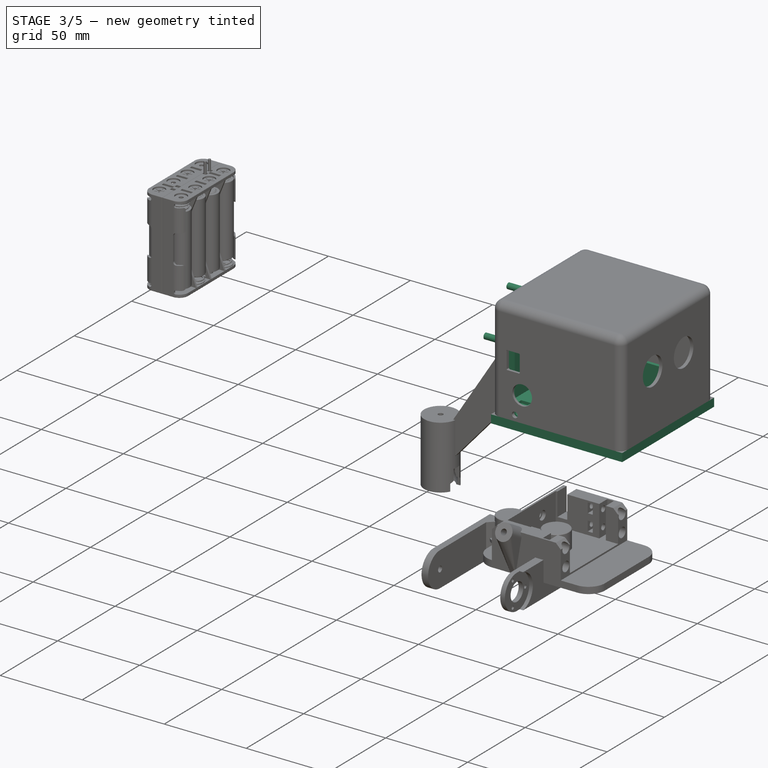
[diagram: stage 3 of 5 — iso view after this stage's code; geometry added in this stage tinted green]
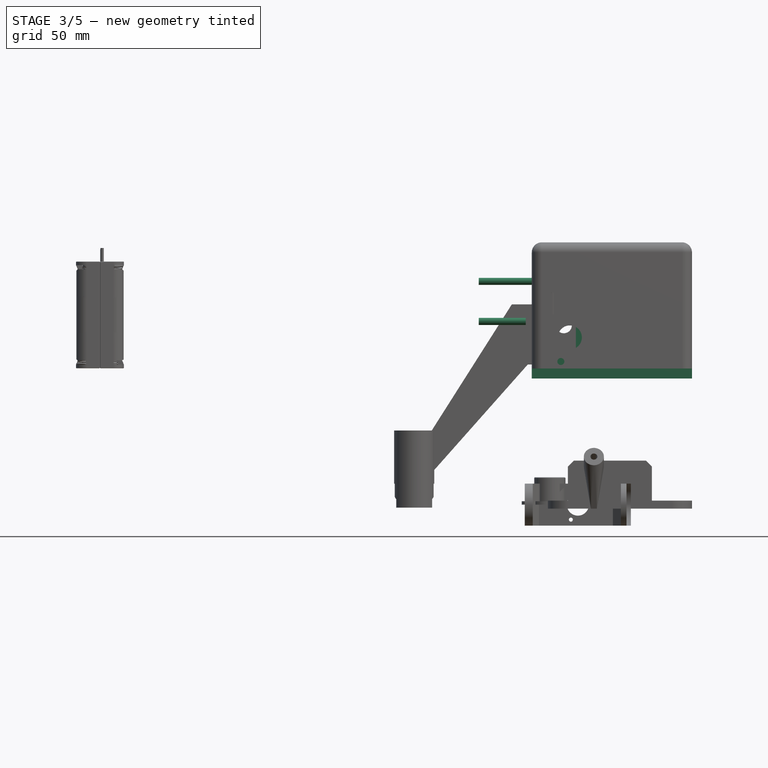
[diagram: stage 3 of 5 — front view after this stage's code; geometry added in this stage tinted green]
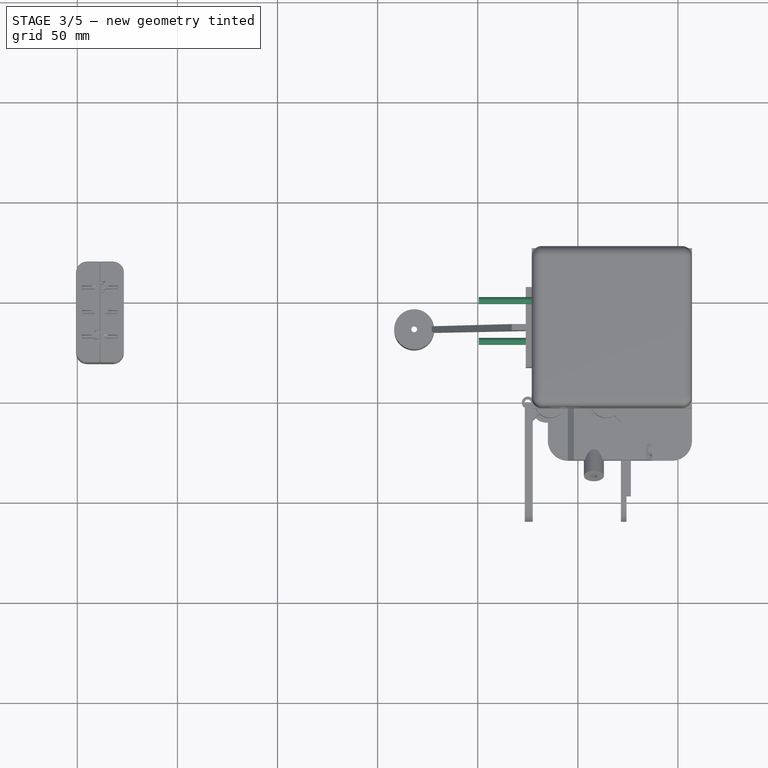
[diagram: stage 3 of 5 — top view after this stage's code; geometry added in this stage tinted green]
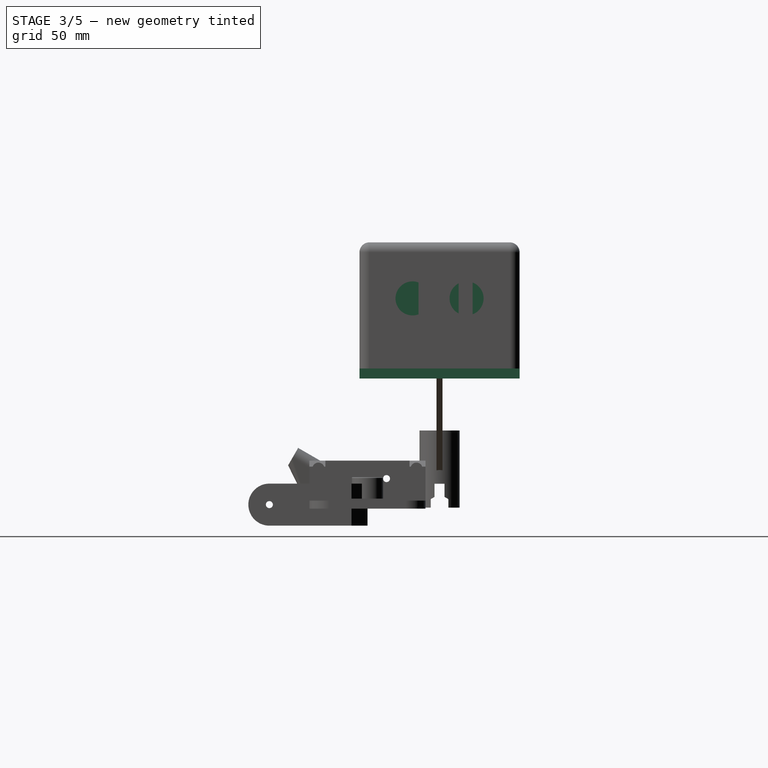
[diagram: stage 3 of 5 — right view after this stage's code; geometry added in this stage tinted green]
FEATURE [Part::Box] Box009  label="Cube009"
  Height = 5
  Length = 80
  Placement = pos=(-23,-4,63) rot=(0,0,1;0rad)
  Width = 80
FEATURE [Part::Box] Box010  label="Cube010"
  Height = 9
  Length = 7
  Placement = pos=(-1,-1,63) rot=(0,0,1;0rad)
  Width = 74
FEATURE [Part::Box] Box011  label="Cube011"
  Height = 9
  Length = 7
  Placement = pos=(47,-1,63) rot=(0,0,1;0rad)
  Width = 74
FEATURE [Part::MultiFuse] Fusion005
  Placement = pos=(44,39,98) rot=(0,1,0;1.5708rad)
  Shapes = -> [Cylinder009,Cylinder008]
FEATURE [Part::MultiFuse] Fusion008
  Placement = pos=(44,29,98) rot=(0,1,0;1.5708rad)
  Shapes = -> [Cylinder009,Cylinder008]
FEATURE [Part::MultiFuse] Fusion009
  Placement = pos=(-5,39,98) rot=(0,1,0;1.5708rad)
  Shapes = -> [Cylinder009,Cylinder008]
FEATURE [Part::MultiFuse] Fusion010
  Placement = pos=(-5,29,98) rot=(0,1,0;1.5708rad)
  Shapes = -> [Cylinder009,Cylinder008]
FEATURE [Part::Box] Box012  label="Cube012"
  Height = 9
  Length = 70
  Placement = pos=(-6,8.5,70) rot=(0,0,1;0rad)
  Width = 2
FEATURE [Part::MultiFuse] Fusion011
  Shapes = -> [Box012,Fusion009,Fusion010,Fusion008,Fusion005]
FEATURE [Part::MultiFuse] Fusion012
  Placement = pos=(0,53,0) rot=(0,0,1;0rad)
  Shapes = -> [Box012,Fusion009,Fusion010,Fusion008,Fusion005]
FEATURE [Part::MultiFuse] Fusion013
  Shapes = -> [Box009,Box011,Box010]
FEATURE [Part::Cut] Cut018
  Base = -> Fusion013
  Tool = -> Fusion012
FEATURE [Part::Cut] Cut019
  Base = -> Cut018
  Tool = -> Fusion011
FEATURE [Part::Box] Box014  label="Cube014"
  Height = 43
  Length = 41
  Placement = pos=(6,-1,59) rot=(0,0,1;0rad)
  Width = 21
FEATURE [Part::Box] Box015  label="Cube015"
  Height = 43
  Length = 41
  Placement = pos=(6,52,59) rot=(0,0,1;0rad)
  Width = 21
FEATURE [Part::Cut] Cut020
  Base = -> Cut019
  Tool = -> Box014
FEATURE [Part::Cut] Cut021
  Base = -> Cut020
  Tool = -> Box015
FEATURE [Part::Box] Box016  label="Cube016"
  Height = 12
  Length = 6
  Placement = pos=(-11.5,3,69) rot=(0,0,1;0rad)
  Width = 3
FEATURE [Part::Box] Box017  label="Cube017"
  Height = 12
  Length = 16
  Placement = pos=(-20,-1,63) rot=(0,0,1;0rad)
  Width = 74
FEATURE [Part::Box] Box018  label="Cube018"
  Height = 12
  Length = 6
  Placement = pos=(-11.5,66,69) rot=(0,0,1;0rad)
  Width = 3
FEATURE [Part::MultiFuse] Fusion014
  Shapes = -> [Cut021,Box017]
FEATURE [Part::Cut] Cut022
  Base = -> Fusion014
  Tool = -> Box016
FEATURE [Part::Cut] Cut023
  Base = -> Cut022
  Tool = -> Box018
FEATURE [Part::Cylinder] Cylinder012  label="Cylinder030"
  Angle = 360
  Height = 31
  Placement = pos=(-8.5,92,71.5) rot=(1,0,0;1.5708rad)
  Radius = 1.75
FEATURE [Part::Cut] Cut024
  Base = -> Cut023
  Tool = -> Cylinder012
FEATURE [Part::Cylinder] Cylinder013  label="Cylinder001"
  Angle = 360
  Height = 31
  Placement = pos=(-8.5,11,71.5) rot=(1,0,0;1.5708rad)
  Radius = 1.75
FEATURE [App::DocumentObjectGroup] Group  label="kinematic"
  Group = -> [Cylinder039,Part__Mirroring008,Cylinder027,Fusion021,Fusion022,Cylinder028,Part__Mirroring009,Part__Mirroring010,Fillet025]
FEATURE [Part::Cut] Cut050
  Base = -> Cut024
  Tool = -> Cylinder013
FEATURE [Part::Box] Box032  label="Cube032"
  Height = 25
  Length = 55
  Placement = pos=(-1,20,66) rot=(0,0,1;0rad)
  Width = 32
FEATURE [Part::Box] Box033  label="Cube033"
  Height = 54
  Length = 4.5
  Placement = pos=(-20,6,64) rot=(0,0,1;0rad)
  Width = 60
FEATURE [Part::Box] Box036  label="Cube034"
  Height = 17
  Length = 13
  Placement = pos=(-14,20,62) rot=(0,0,1;0rad)
  Width = 32
FEATURE [Part::Fillet] Fillet018002
  Base = -> Box036
  Edges = 4 edges r=5: [Edge1,Edge3,Edge5,Edge7]
FEATURE [Part::Cylinder] Cylinder041  label="Cylinder063"
  Angle = 360
  Height = 31
  Placement = pos=(-49.5,49,111.5) rot=(0,1,0;1.5708rad)
  Radius = 1.75
FEATURE [Part::MultiFuse] Fusion025
  Shapes = -> [Box032,Cut050]
FEATURE [Part::Box] Box037  label="Cube036"
  Height = 44
  Length = 61
  Placement = pos=(-9,22,66) rot=(0,0,1;0rad)
  Width = 28
FEATURE [Part::MultiFuse] Fusion026
  Shapes = -> [Fusion025,Box033]
FEATURE [Part::Cut] Cut051
  Base = -> Fusion026
  Tool = -> Fillet018002
FEATURE [App::DocumentObjectGroup] Group002  label="patines"
  Group = -> [Cut061,Fusion037]
FEATURE [Part::Cylinder] Cylinder053  label="Cylinder072"
  Angle = 360
  Height = 31
  Placement = pos=(-49.5,29,91.5) rot=(0,1,0;1.5708rad)
  Radius = 1.75
FEATURE [App::DocumentObjectGroup] Group004  label="electronic"
  Group = -> [Part__Mirroring,Part__Mirroring001,Part__Mirroring003,Part__Mirroring004,Fusion019,Part__Feature023,Group001]
FEATURE [App::DocumentObjectGroup] Group005  label="aux"
  Group = -> [Fusion034,Cut065]
FEATURE [Part::Cut] Cut066
  Base = -> Cut051
  Tool = -> Box037
FEATURE [Part::Chamfer] Chamfer003
  Base = -> Cut066
  Edges = 1 edges r=3: [Edge1]
FEATURE [Part::MultiFuse] Fusion040
  Shapes = -> [Chamfer003,Fusion039]
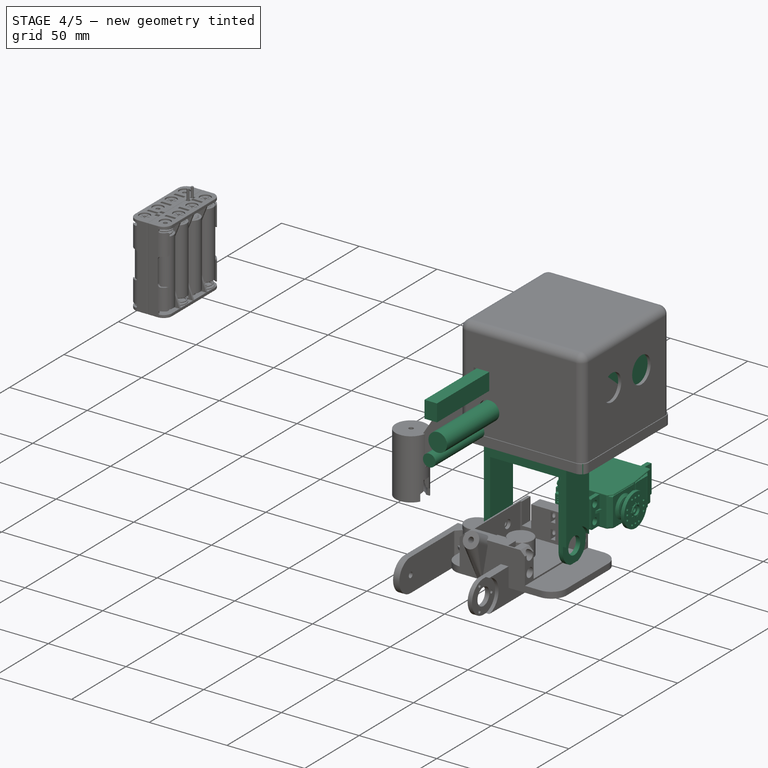
[diagram: stage 4 of 5 — iso view after this stage's code; geometry added in this stage tinted green]
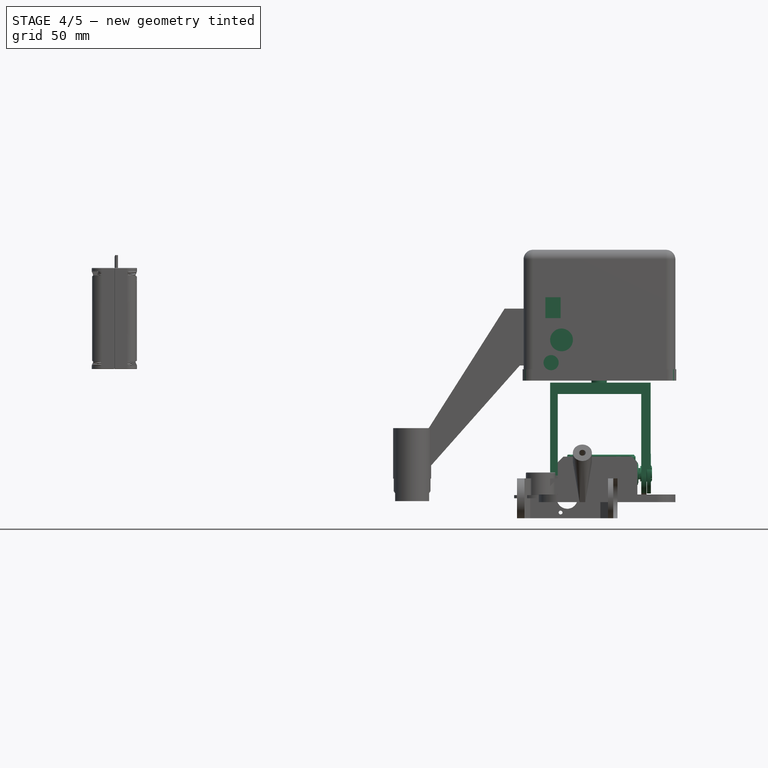
[diagram: stage 4 of 5 — front view after this stage's code; geometry added in this stage tinted green]
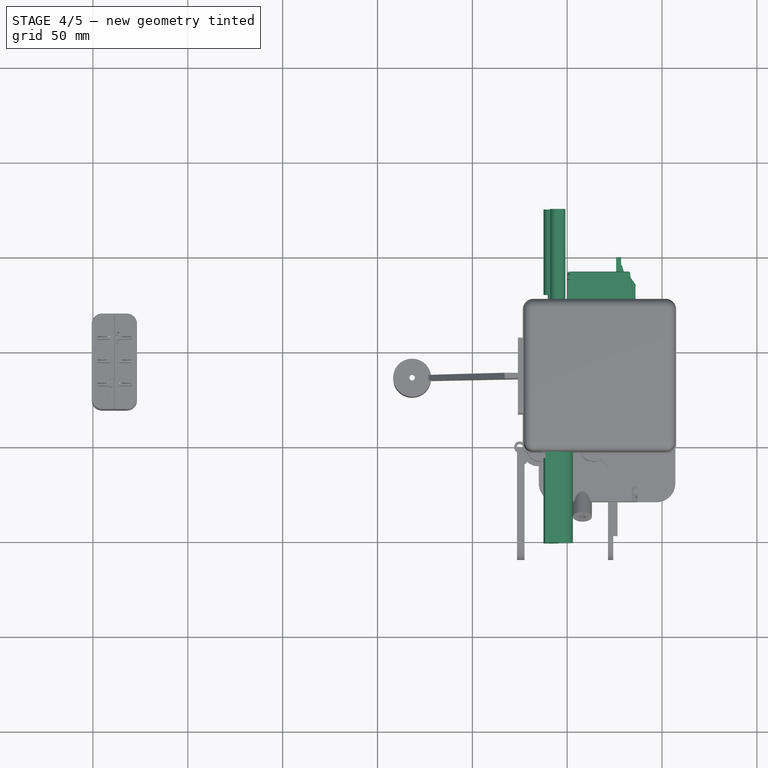
[diagram: stage 4 of 5 — top view after this stage's code; geometry added in this stage tinted green]
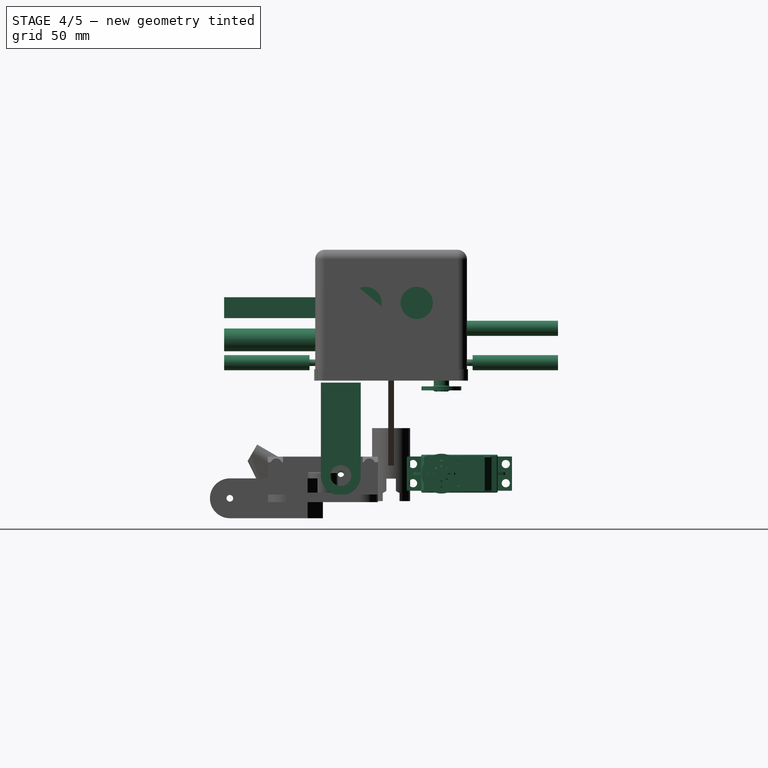
[diagram: stage 4 of 5 — right view after this stage's code; geometry added in this stage tinted green]
FEATURE [Part::Box] Box004  label="Cube004"
  Height = 60
  Length = 44
  Placement = pos=(-5,-24,-5) rot=(0,0,1;0rad)
  Width = 61
FEATURE [Part::Mirroring] Part__Mirroring  label="Servo-D1 (Mirror #1)"
  Base = (0,0,0)
  Normal = (0,1,0)
  Placement = pos=(0,72,0) rot=(0,0,1;0rad)
  Source = -> Part__Feature013
FEATURE [Part::Mirroring] Part__Mirroring001  label="Servo-D2 (Mirror #2)"
  Base = (0,0,0)
  Normal = (0,1,0)
  Placement = pos=(0,72,0) rot=(0,0,1;0rad)
  Source = -> Part__Feature014
FEATURE [Part::Cylinder] Cylinder002  label="Joint-D004"
  Angle = 360
  Height = 53
  Placement = pos=(-9,9.5,12) rot=(0,1,0;1.5708rad)
  Radius = 10.5
FEATURE [Part::MultiFuse] Fusion
  Shapes = -> [Cylinder002]
FEATURE [Part::Cylinder] Cylinder004  label="Joint-D006"
  Angle = 360
  Height = 74.5
  Placement = pos=(16,9.5,12) rot=(0,1,0;1.5708rad)
  Radius = 5.5
FEATURE [Part::Cut] Cut003
  Base = -> Fusion
  Tool = -> Box004
FEATURE [Part::Cylinder] Cylinder005  label="Joint-D007"
  Angle = 360
  Height = 74.5
  Placement = pos=(-51,9.5,12) rot=(0,1,0;1.5708rad)
  Radius = 1.75
FEATURE [Part::Cut] Cut004
  Base = -> Cut003
  Tool = -> Cylinder004
FEATURE [Part::Cut] Cut005
  Base = -> Cut004
  Tool = -> Cylinder005
FEATURE [Part::Cylinder] Cylinder006  label="Joint-D008"
  Angle = 360
  Height = 74.5
  Placement = pos=(41.8,9.5,12) rot=(0,1,0;1.5708rad)
  Radius = 11
FEATURE [Part::Cut] Cut006
  Base = -> Cut005
  Tool = -> Cylinder006
FEATURE [PartDesign::Fillet] Fillet011  label="horn"
  Placement = pos=(38.5,9.5,13) rot=(0,0,-1;1.5708rad)
  Radius = 0.5
FEATURE [PartDesign::Fillet] Fillet012  label="horn001"
  Placement = pos=(16.8,9.5,62.5) rot=(-0.57735,0.57735,-0.57735;2.0944rad)
  Radius = 0.5
FEATURE [Part::Mirroring] Part__Mirroring003  label="horn (Mirror #4)"
  Base = (41.6,1.90735e-06,13)
  Normal = (0,1,-1.19209e-07)
  Placement = pos=(0,72,0) rot=(0,0,1;0rad)
  Source = -> Fillet011
FEATURE [Part::Mirroring] Part__Mirroring004  label="horn001 (Mirror #5)"
  Base = (16.8,7.62939e-06,59.3998)
  Normal = (0,1,-1.19209e-07)
  Placement = pos=(0,72,0) rot=(0,0,1;0rad)
  Source = -> Fillet012
FEATURE [Part::Box] Box035  label="Cube035"
  Height = 68
  Length = 6
  Placement = pos=(-23.5,17,68) rot=(0,0,1;0rad)
  Width = 38
FEATURE [Part::Cylinder] Cylinder  label="Cylinder061"
  Angle = 360
  Height = 31
  Placement = pos=(-49.5,29,111.5) rot=(0,1,0;1.5708rad)
  Radius = 1.75
FEATURE [Part::Cylinder] Cylinder040  label="Cylinder062"
  Angle = 360
  Height = 31
  Placement = pos=(-49.5,49,91.5) rot=(0,1,0;1.5708rad)
  Radius = 1.75
FEATURE [Part::Box] Box038  label="Cube037"
  Height = 11
  Length = 8
  Placement = pos=(-11.5,-52,95) rot=(0,0,1;0rad)
  Width = 58
FEATURE [Part::Cylinder] Cylinder042  label="Cylinder064"
  Angle = 360
  Height = 61
  Placement = pos=(-5,124,89.6) rot=(1,0,0;1.5708rad)
  Radius = 4
FEATURE [Part::Cylinder] Cylinder043  label="Cylinder065"
  Angle = 360
  Height = 63
  Placement = pos=(-3,11,83.5) rot=(1,0,0;1.5708rad)
  Radius = 6
FEATURE [Part::Box] Box039  label="Cube038"
  Height = 66
  Length = 76
  Placement = pos=(-21,-2,63) rot=(0,0,1;0rad)
  Width = 76
FEATURE [Part::Cylinder] Cylinder044  label="Cylinder066"
  Angle = 360
  Height = 23
  Placement = pos=(-8.5,1,71.5) rot=(1,0,0;1.5708rad)
  Radius = 1.75
FEATURE [Part::Cylinder] Cylinder045  label="Cylinder067"
  Angle = 360
  Height = 31
  Placement = pos=(-8.5,94,71.5) rot=(1,0,0;1.5708rad)
  Radius = 1.75
FEATURE [Part::Fillet] Fillet018007
  Base = -> Box039
  Edges = 8 edges r=3: [Edge1,Edge2,Edge3,Edge5,Edge6,Edge7,Edge10,Edge12]
FEATURE [Part::Box] Box040  label="Cube039"
  Height = 6
  Length = 81
  Placement = pos=(-23.5,-4.5,63) rot=(0,0,1;0rad)
  Width = 81
FEATURE [Part::Fillet] Fillet018008
  Base = -> Box040
  Edges = 4 edges r=5: [Edge1,Edge3,Edge5,Edge7]
  Placement = pos=(0,0,-1) rot=(0,0,1;0rad)
FEATURE [Part::Cylinder] Cylinder046  label="Cylinder068"
  Angle = 360
  Height = 45
  Placement = pos=(-8.5,-7,71.5) rot=(1,0,0;1.5708rad)
  Radius = 4
FEATURE [Part::Cylinder] Cylinder047  label="Cylinder069"
  Angle = 360
  Height = 45
  Placement = pos=(-8.5,124,71.5) rot=(1,0,0;1.5708rad)
  Radius = 4
FEATURE [Part::MultiFuse] Fusion033
  Shapes = -> [Fillet018007,Fillet018008]
FEATURE [Part::MultiFuse] Fusion034  label="corte-positivo"
  Shapes = -> [Fusion033,Cylinder042,Cylinder047,Cylinder045,Cylinder046,Cylinder043,Box038,Cylinder044]
FEATURE [Part::MultiFuse] Fusion038
  Placement = pos=(14,0,0) rot=(0,0,1;0rad)
  Shapes = -> [Cylinder053,Cylinder040,Cylinder041,Cylinder]
FEATURE [Part::Fillet] Fillet018011  label="cabeza001"
  Base = -> Cut057
  Edges = 4 edges r=0.5: [Edge82,Edge83,Edge84,Edge85]
FEATURE [Part::Box] Box046  label="Cube045"
  Height = 25
  Length = 10
  Placement = pos=(-28,21,67) rot=(0,0,1;0rad)
  Width = 30
FEATURE [Part::Fillet] Fillet018012
  Base = -> Box046
  Edges = 2 edges r=3: [Edge10,Edge12]
  Placement = pos=(0,0,-6) rot=(0,0,1;0rad)
FEATURE [Part::Cut] Cut065  label="cut-head"
  Base = -> Fillet018011
  Tool = -> Fillet018012
FEATURE [Part::Cut] Cut067
  Base = -> Fusion040
  Tool = -> Fusion038
FEATURE [Part::Cut] Cut068
  Base = -> Cut067
  Tool = -> Box035
FEATURE [Part::Fillet] Fillet018013
  Base = -> Cut068
  Edges = 8 edges: [Edge81 r=3,Edge84 r=3,Edge217 r=5,Edge218 r=5,Edge231 r=3,Edge247 r=3,Edge262 r=5,Edge263 r=5]
FEATURE [Part::Chamfer] Chamfer004  label="chasis"
  Base = -> Fillet018013
  Edges = 3 edges: [Edge292 r=16,Edge293 r=16,Edge295 r=1.5]
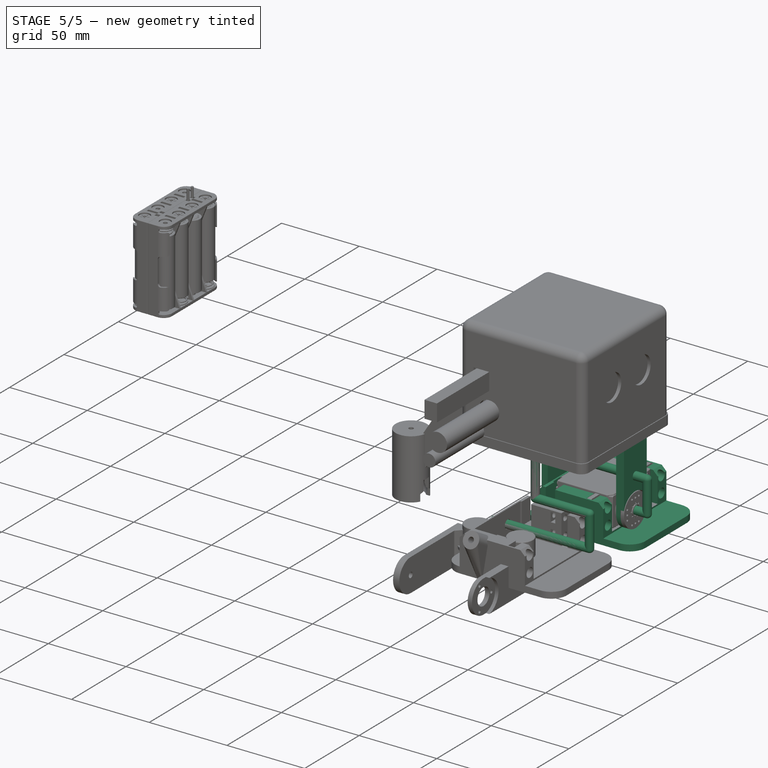
[diagram: stage 5 of 5 — iso view after this stage's code; geometry added in this stage tinted green]
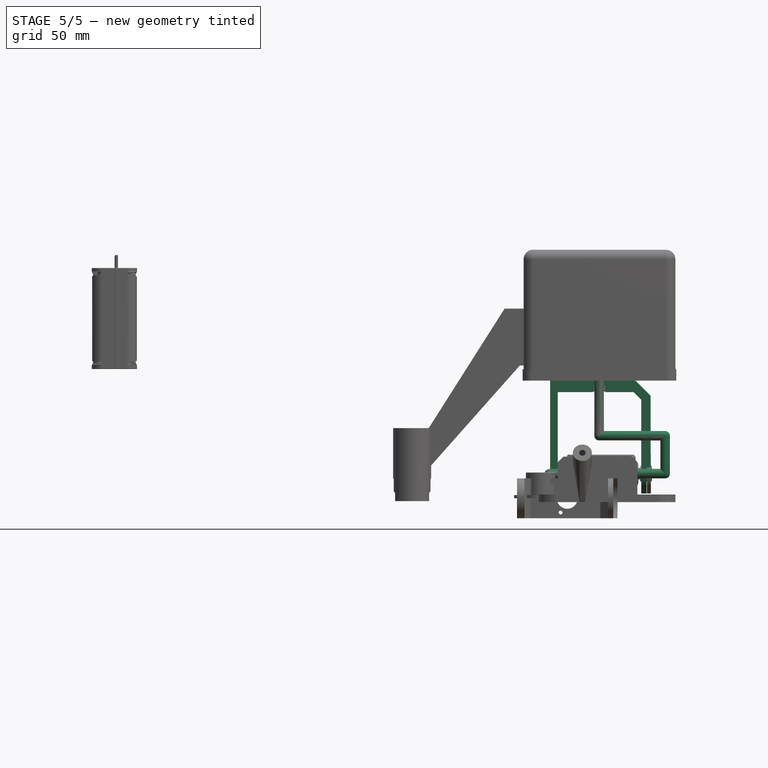
[diagram: stage 5 of 5 — front view after this stage's code; geometry added in this stage tinted green]
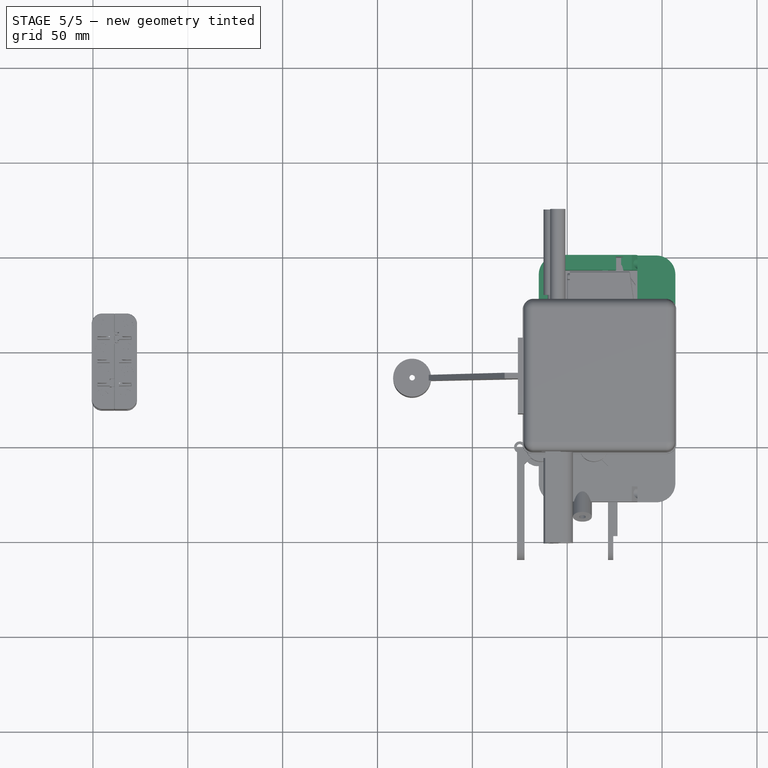
[diagram: stage 5 of 5 — top view after this stage's code; geometry added in this stage tinted green]
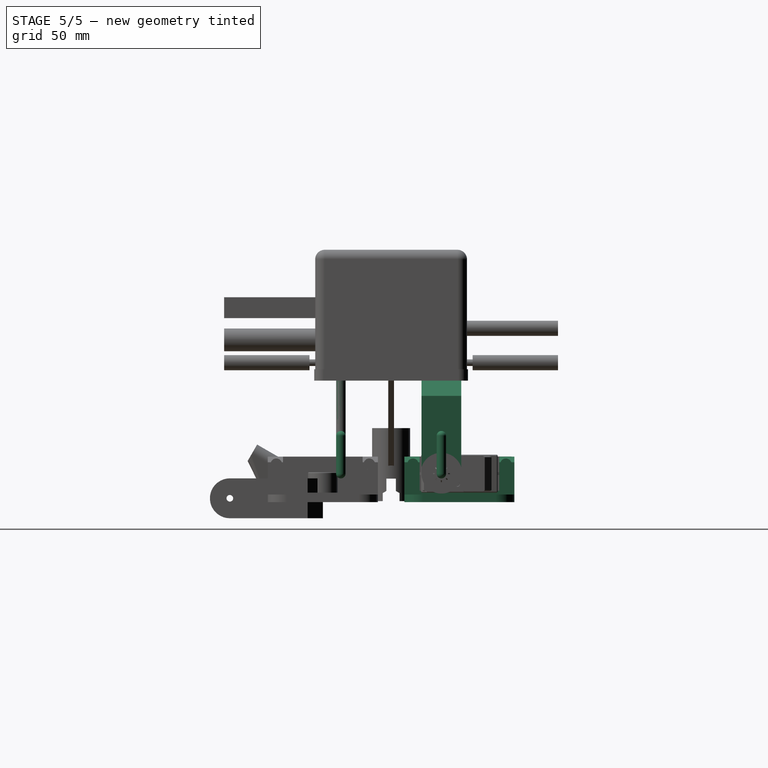
[diagram: stage 5 of 5 — right view after this stage's code; geometry added in this stage tinted green]
FEATURE [Part::Cylinder] Cylinder007  label="Joint-D009"
  Angle = 360
  Height = 23.5
  Placement = pos=(16.8,9.5,58.3) rot=(0,1,0;3.14159rad)
  Radius = 11
FEATURE [Part::Cylinder] Cylinder010  label="Joint-D012"
  Angle = 360
  Height = 74.5
  Placement = pos=(17,9.5,12) rot=(0,0,1;0rad)
  Radius = 5.5
FEATURE [Part::Cylinder] Cylinder021  label="Joint-D014"
  Angle = 360
  Height = 52.5
  Placement = pos=(19,9.5,20.35) rot=(0,1,0;1.5708rad)
  Radius = 1
FEATURE [Part::Cylinder] Cylinder022  label="Joint-D015"
  Angle = 360
  Height = 52.5
  Placement = pos=(19,2,9.5) rot=(0,1,0;1.5708rad)
  Radius = 1
FEATURE [Part::Cylinder] Cylinder023  label="Joint-D016"
  Angle = 360
  Height = 52.5
  Placement = pos=(19,17,9.5) rot=(0,1,0;1.5708rad)
  Radius = 1
FEATURE [Part::MultiFuse] Fusion017
  Placement = pos=(0,0,-1) rot=(0,0,1;0rad)
  Shapes = -> [Cylinder022,Cylinder021,Cylinder023]
FEATURE [Part::MultiFuse] Fusion018
  Placement = pos=(4,0,101) rot=(0,1,0;1.5708rad)
  Shapes = -> [Cylinder022,Cylinder021,Cylinder023]
FEATURE [Part::Cut] Cut017  label="pie"
  Base = -> Cut016
  Tool = -> Cylinder011
FEATURE [Part::Box] Box024  label="Cube024"
  Height = 23
  Length = 6
  Placement = pos=(0,19,7) rot=(0,0,1;0rad)
  Width = 36
FEATURE [Part::Cut] Cut039  label="pie-D"
  Base = -> Cut017
  Placement = pos=(0,0,1) rot=(0,0,1;0rad)
  Tool = -> Box024
FEATURE [Part::Mirroring] Part__Mirroring006  label="pie-I"
  Base = (0,0,0)
  Normal = (0,1,0)
  Placement = pos=(0,72,0) rot=(0,0,1;0rad)
  Source = -> Cut039
FEATURE [Part::Cut] Cut044
  Base = -> Cut006
  Tool = -> Box004
FEATURE [Part::Cut] Cut045
  Base = -> Cut044
  Tool = -> Cylinder007
FEATURE [Part::Cut] Cut046
  Base = -> Cut045
  Tool = -> Fusion018
FEATURE [Part::Cut] Cut047
  Base = -> Cut046
  Tool = -> Fusion017
FEATURE [Part::Cut] Cut048
  Base = -> Cut047
  Placement = pos=(0,0,1) rot=(0,0,1;0rad)
  Tool = -> Cylinder010
FEATURE [Part::Chamfer] Chamfer001
  Base = -> Cut048
  Edges = 1 edges r=4: [Edge61]
FEATURE [Part::Chamfer] Chamfer002  label="pata-D"
  Base = -> Chamfer001
  Edges = 1 edges r=8: [Edge58]
FEATURE [Part::Mirroring] Part__Mirroring007  label="pata-I"
  Base = (17.5,3.8147e-06,32.25)
  Normal = (0,1,-1.19209e-07)
  Placement = pos=(0,72,0) rot=(0,0,1;0rad)
  Source = -> Chamfer002
FEATURE [Part::Feature] Part__Feature  label="Portapilas008"
  shape: bbox 2e-07 x 47.97 x 51.59 mm, 1 faces, 0 solids (baked)
FEATURE [Part::Feature] Part__Feature015  label="Portapilas007"
  shape: bbox 9.213 x 1.1 x 48.01 mm, 3 faces, 0 solids (baked)
FEATURE [Part::Feature] Part__Feature016  label="Portapilas006"
  shape: bbox 9.213 x 1.1 x 48.01 mm, 3 faces, 0 solids (baked)
FEATURE [Part::Feature] Part__Feature017  label="Portapilas005"
  shape: bbox 9.213 x 1.1 x 48.01 mm, 3 faces, 0 solids (baked)
FEATURE [Part::Feature] Part__Feature018  label="Portapilas004"
  shape: bbox 9.213 x 1.1 x 48.01 mm, 3 faces, 0 solids (baked)
FEATURE [Part::Feature] Part__Feature019  label="Portapilas003"
  shape: bbox 9.213 x 1.1 x 48.01 mm, 3 faces, 0 solids (baked)
FEATURE [Part::Feature] Part__Feature020  label="Portapilas002"
  shape: bbox 9.213 x 1.1 x 48.01 mm, 3 faces, 0 solids (baked)
FEATURE [Part::Feature] Part__Feature021  label="Portapilas001"
  shape: bbox 16.42 x 48.04 x 51.59 mm, 26 faces, 0 solids (baked)
FEATURE [Part::Feature] Part__Feature022  label="Portapilas"
  shape: bbox 21.03 x 69.14 x 72.63 mm, 394 faces, 0 solids (baked)
FEATURE [Part::MultiFuse] Fusion019  label="peterpilas"
  Placement = pos=(23,77.5,76) rot=(0,0,1;1.5708rad)
  Shapes = -> [Part__Feature022,Part__Feature021,Part__Feature020,Part__Feature019,Part__Feature018,Part__Feature017,Part__Feature016,Part__Feature015,Part__Feature]
FEATURE [Part::Feature] Part__Feature023  label="Ultrasonido_BAT"
  Placement = pos=(-17,36,59.5) rot=(0,0,1;0rad)
  shape: bbox 18.72 x 56 x 27.52 mm, 81 faces (baked)
FEATURE [Part::Cylinder] Cylinder027  label="Joint-D019"
  Angle = 360
  Height = 24
  Placement = pos=(16.8,9.5,81) rot=(0,1,0;3.14159rad)
  Radius = 10
FEATURE [Part::Cylinder] Cylinder028  label="Joint-D020"
  Angle = 360
  Height = 24
  Placement = pos=(4.8,9.5,13) rot=(0,1,0;1.5708rad)
  Radius = 10
FEATURE [Part::Mirroring] Part__Mirroring008  label="Joint-D019 (Mirror #7)"
  Base = (0,0,0)
  Normal = (0,1,0)
  Placement = pos=(0,72,0) rot=(0,0,1;0rad)
  Source = -> Cylinder027
FEATURE [Part::Mirroring] Part__Mirroring009  label="Joint-D020 (Mirror #8)"
  Base = (22,1.90735e-06,13)
  Normal = (0,1,-1.19209e-07)
  Placement = pos=(0,72,0) rot=(0,0,1;0rad)
  Source = -> Cylinder028
FEATURE [Part::Box] Box031  label="Cube031"
  Height = 4
  Length = 72
  Placement = pos=(-15,-29,-2) rot=(0,0,1;0rad)
  Width = 58
FEATURE [Part::Fillet] Fillet025
  Base = -> Box031
  Edges = 4 edges r=10: [Edge1,Edge3,Edge5,Edge7]
FEATURE [Part::Mirroring] Part__Mirroring010  label="Fillet025 (Mirror #9)"
  Base = (0,0,0)
  Normal = (0,1,0)
  Placement = pos=(0,72,0) rot=(0,0,1;0rad)
  Source = -> Fillet025
FEATURE [Part::Cylinder] Cylinder034  label="Cylinder056"
  Angle = 360
  Height = 35
  Placement = pos=(51.6,9.5,33) rot=(0.707107,0,-0.707107;3.14159rad)
  Radius = 2.5
FEATURE [Part::Cylinder] Cylinder035  label="Cylinder057"
  Angle = 360
  Height = 20
  Placement = pos=(51.6,9.5,13) rot=(0,0,1;3.14159rad)
  Radius = 2.5
FEATURE [Part::Cylinder] Cylinder036  label="Cylinder058"
  Angle = 360
  Height = 61
  Placement = pos=(-9.4,9.5,13) rot=(0.707107,0,0.707107;3.14159rad)
  Radius = 2.5
FEATURE [Part::Sphere] Sphere
  Angle1 = -90
  Angle2 = 90
  Angle3 = 360
  Placement = pos=(16.8,9.5,33) rot=(1,0,0;3.14159rad)
  Radius = 2.5
FEATURE [Part::Sphere] Sphere008
  Angle1 = -90
  Angle2 = 90
  Angle3 = 360
  Placement = pos=(51.6,9.5,33) rot=(0.707107,0,-0.707107;3.14159rad)
  Radius = 2.5
FEATURE [Part::Cylinder] Cylinder037  label="Cylinder059"
  Angle = 360
  Height = 11
  Placement = pos=(-9.4,9.5,2) rot=(0,0,1;3.14159rad)
  Radius = 2.5
FEATURE [Part::Sphere] Sphere009
  Angle1 = -90
  Angle2 = 90
  Angle3 = 360
  Placement = pos=(51.6,9.5,13) rot=(0.707107,0,-0.707107;3.14159rad)
  Radius = 2.5
FEATURE [Part::Cylinder] Cylinder038  label="cylinder001"
  Angle = 360
  Height = 83
  Placement = pos=(16.8,9.5,33) rot=(0,0,1;3.14159rad)
  Radius = 2.5
FEATURE [Part::Sphere] Sphere010
  Angle1 = -90
  Angle2 = 90
  Angle3 = 360
  Placement = pos=(16.8,9.5,116) rot=(1,0,0;3.14159rad)
  Radius = 2.5
FEATURE [Part::Sphere] Sphere011
  Angle1 = -90
  Angle2 = 90
  Angle3 = 360
  Placement = pos=(-9.4,9.5,2) rot=(0.707107,0,-0.707107;3.14159rad)
  Radius = 2.5
FEATURE [Part::Sphere] Sphere012
  Angle1 = -90
  Angle2 = 90
  Angle3 = 360
  Placement = pos=(-9.4,9.5,13) rot=(0.707107,0,-0.707107;3.14159rad)
  Radius = 2.5
FEATURE [Part::Cylinder] Cylinder039  label="Cylinder060"
  Angle = 360
  Height = 53
  Placement = pos=(16.8,9.5,116) rot=(-1,0,0;1.5708rad)
  Radius = 2.5
FEATURE [Part::MultiFuse] Fusion021
  Placement = pos=(0,53,0) rot=(0,0,1;0rad)
  Shapes = -> [Cylinder037,Cylinder036,Sphere012,Cylinder035,Cylinder034,Cylinder038,Sphere010,Sphere008,Sphere009,Sphere,Sphere011]
FEATURE [Part::MultiFuse] Fusion022
  Shapes = -> [Cylinder037,Cylinder036,Sphere012,Cylinder035,Cylinder034,Cylinder038,Sphere010,Sphere008,Sphere009,Sphere,Sphere011]
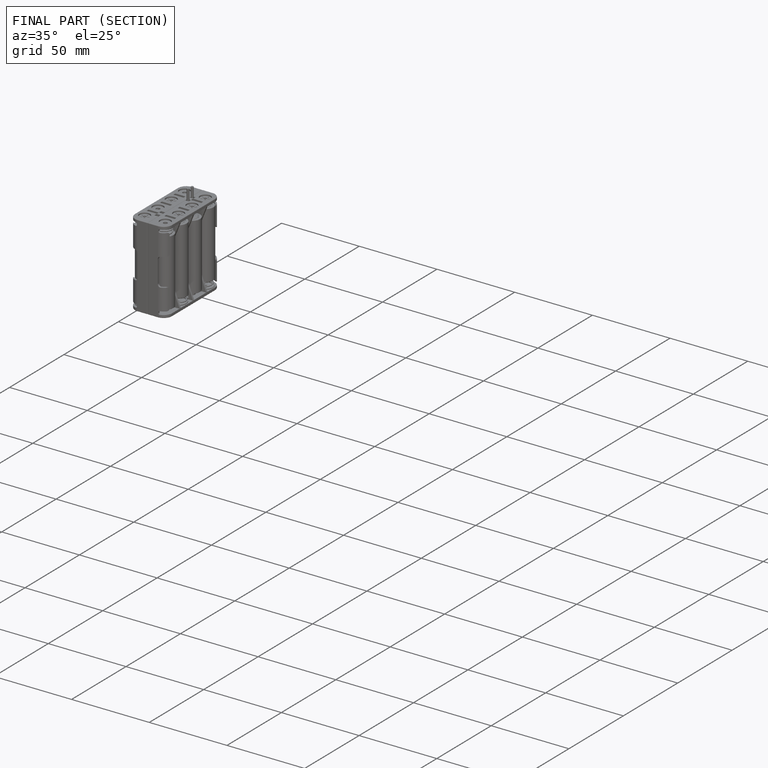
[diagram: finished part — half-section view (interior)]
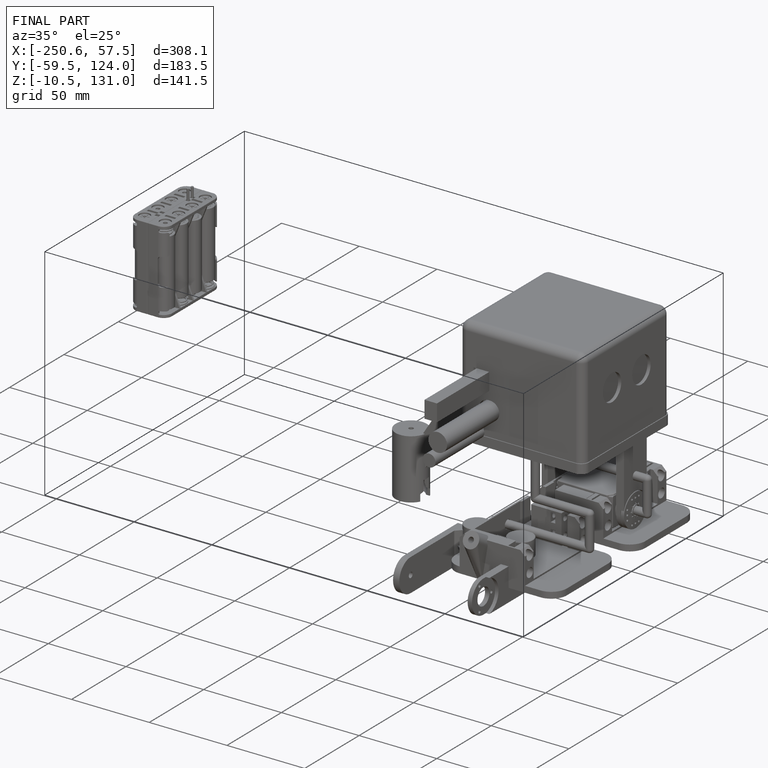
[diagram: finished part — iso view with bounding-box wireframe]
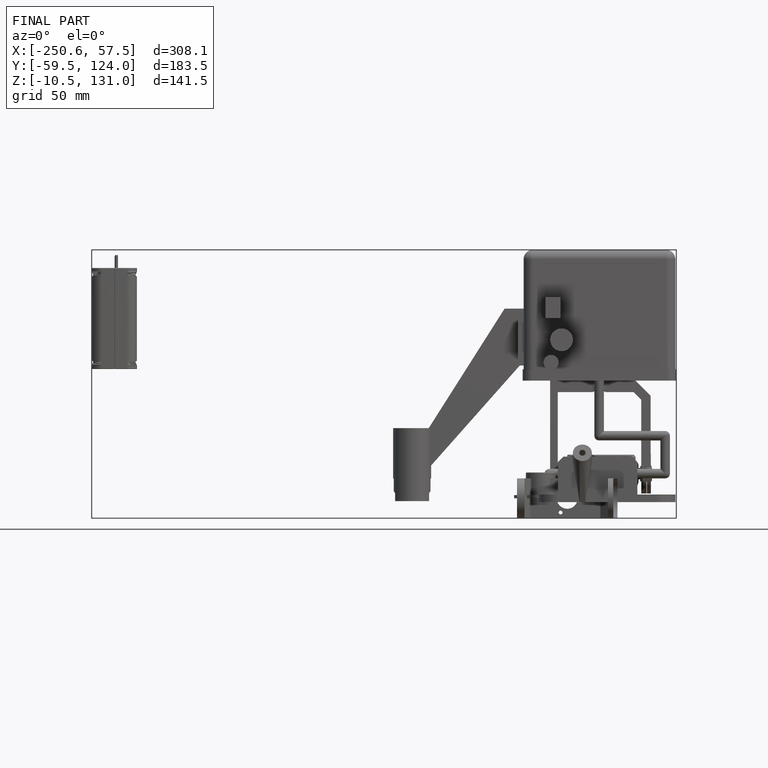
[diagram: finished part — front view with bounding-box wireframe]
